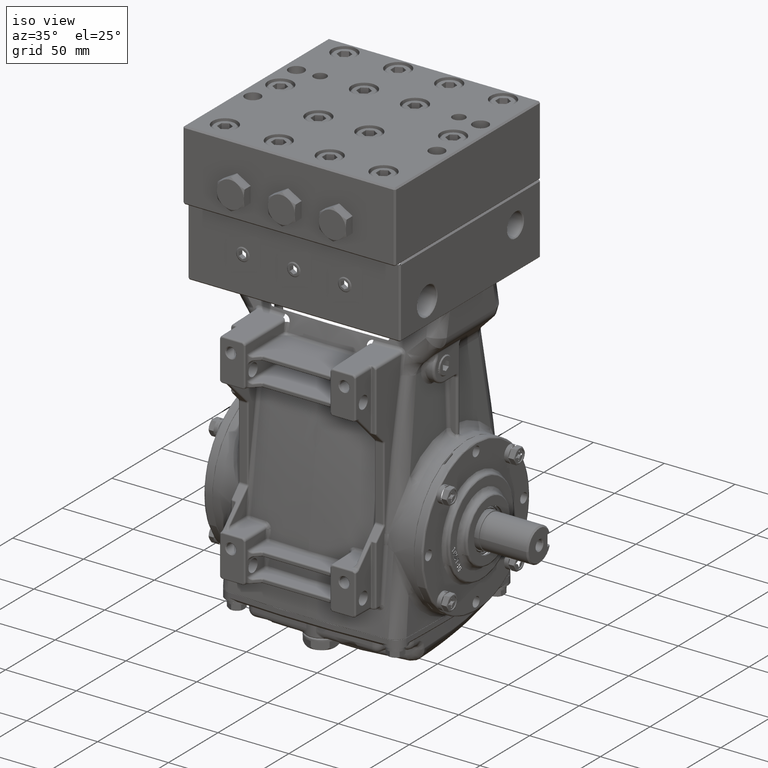
[diagram: clean part render]
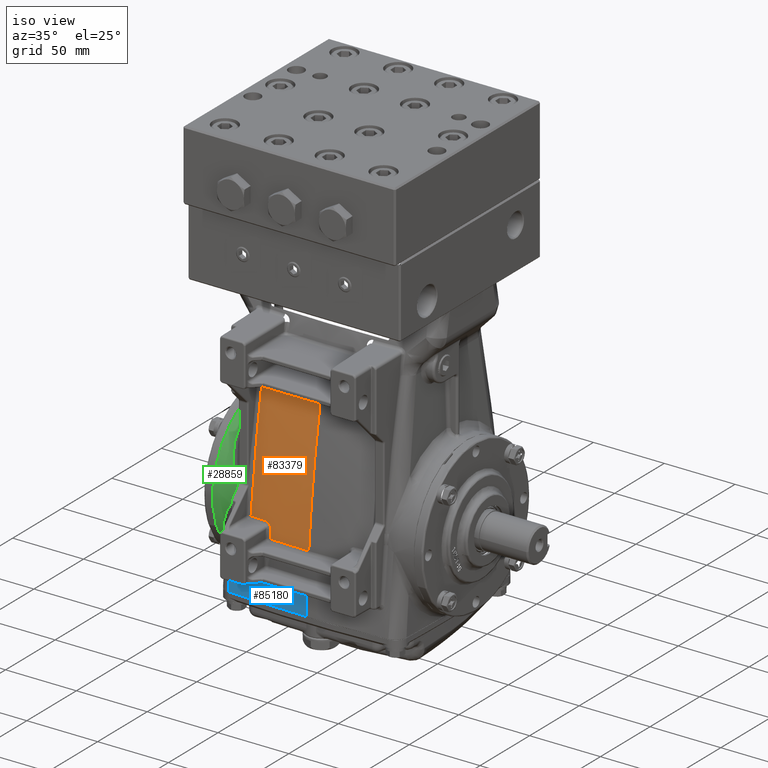
[diagram: same view with three faces highlighted in distinct colors, each labeled with its STEP entity id]
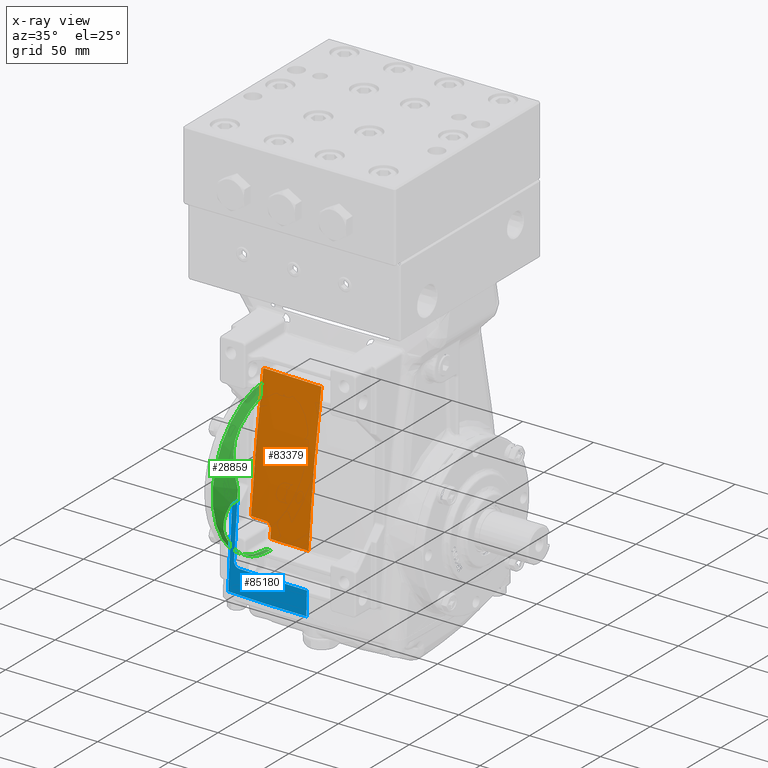
[diagram: x-ray of the same camera — body ghosted, the three highlighted faces saturated]
A machine part, iso view with three faces highlighted in distinct colors.
The next image is the same camera in x-ray (body ghosted, the three faces saturated) — at least one of them is partly hidden behind the body in this view.
Their STEP definitions:

[orange] entity #83379 — the highlighted face is a freeform B-spline surface patch.
#301 = CARTESIAN_POINT ( 'NONE',  ( -0.1019934165441795937, -2.300768595909192804, 0.4897784465330164427 ) ) ;
#431 = ORIENTED_EDGE ( 'NONE', *, *, #54745, .F. ) ;
#735 = CARTESIAN_POINT ( 'NONE',  ( 2.450684691601668241, -2.118214908375335881, 0.4897784465330197179 ) ) ;
#763 = CARTESIAN_POINT ( 'NONE',  ( -0.3616787861395119874, -2.306496812825876486, -0.5440526561699657870 ) ) ;
#1177 = CARTESIAN_POINT ( 'NONE',  ( -2.179242577519481916, -1.242815352902275405, 5.708661417322825393 ) ) ;
#1596 = CARTESIAN_POINT ( 'NONE',  ( -1.742463560137305301, -1.843263351871661904, 3.127925920230746559 ) ) ;
#1876 = CARTESIAN_POINT ( 'NONE',  ( -1.240444894278595944, -2.234850677969940413, -0.1501769756821681734 ) ) ;
#2037 = CARTESIAN_POINT ( 'NONE',  ( -2.913385843901003192, -1.691985680221069988, 3.127925920230766099 ) ) ;
#5579 = CARTESIAN_POINT ( 'NONE',  ( 1.345329668388606015, -2.372960332906651093, -2.165354330708661568 ) ) ;
#6007 = CARTESIAN_POINT ( 'NONE',  ( 0.3973269798802264163, -2.297068369690841383, 0.4897784465330322634 ) ) ;
#6473 = CARTESIAN_POINT ( 'NONE',  ( 0.3931574066697895442, -2.399831511276513840, -2.165354330708661568 ) ) ;
#6676 = EDGE_LOOP ( 'NONE', ( #431, #86555, #54275, #40300, #36726, #59564, #78010 ) ) ;
#6893 = CARTESIAN_POINT ( 'NONE',  ( 0.1450532115828236657, -2.401574803149604254, -2.165354330708661568 ) ) ;
#7261 = EDGE_CURVE ( 'NONE', #33153, #55892, #75219, .T. ) ;
#7320 = CARTESIAN_POINT ( 'NONE',  ( 2.841641326625985009, -1.202961639721772391, 5.708661417322835163 ) ) ;
#7322 = CARTESIAN_POINT ( 'NONE',  ( -3.880358019103940263E-16, -1.793953829572055847, 3.388778491068083820 ) ) ;
#7769 = CARTESIAN_POINT ( 'NONE',  ( -2.841633460699814151, -2.272069094341539142, -2.165354330708661124 ) ) ;
#8202 = CARTESIAN_POINT ( 'NONE',  ( -2.862114397419989853, -1.201536995417320064, 5.708661417322835163 ) ) ;
#8281 = CARTESIAN_POINT ( 'NONE',  ( -1.527915027197057851, -2.215913157812103851, -0.1499813333665312443 ) ) ;
#8473 = CARTESIAN_POINT ( 'NONE',  ( -1.230050119412569920, -2.235483626887897035, -0.1501834840828506212 ) ) ;
#8631 = CARTESIAN_POINT ( 'NONE',  ( -1.523571933390371225, -1.864023738764603477, 3.127925920230739010 ) ) ;
#9185 = CARTESIAN_POINT ( 'NONE',  ( -1.663672434191497240, -1.730195569268732747, 3.388363233297321475 ) ) ;
#10192 = CARTESIAN_POINT ( 'NONE',  ( -1.144808578580310376, -2.243454319908962713, -0.1825626556147575130 ) ) ;
#12320 = CARTESIAN_POINT ( 'NONE',  ( -7.157645399727127983E-16, -2.181088388933470679, 0.7727195738630786570 ) ) ;
#12583 = CARTESIAN_POINT ( 'NONE',  ( 0.4056649939589591081, -1.297898323476696980, 5.708661417322884901 ) ) ;
#13020 = CARTESIAN_POINT ( 'NONE',  ( -0.2386529819870311930, -2.400899943846322770, -2.165354330708661568 ) ) ;
#13463 = CARTESIAN_POINT ( 'NONE',  ( -0.2434275427088367916, -1.298707510032790280, 5.708661417322822729 ) ) ;
#13860 = VERTEX_POINT ( 'NONE', #47951 ) ;
#13885 = CARTESIAN_POINT ( 'NONE',  ( 2.085131295870258139, -1.806265684984527997, 3.127925920230774981 ) ) ;
#14224 = CARTESIAN_POINT ( 'NONE',  ( -1.084082905692057119, -2.260424564412967463, -0.3341032687350067865 ) ) ;
#14310 = CARTESIAN_POINT ( 'NONE',  ( 1.150346110494639085, -1.283976514928853341, 5.708661417322789866 ) ) ;
#15185 = CARTESIAN_POINT ( 'NONE',  ( -2.441314665332592337, -2.306279735125314811, -2.165354330708661124 ) ) ;
#15517 = CARTESIAN_POINT ( 'NONE',  ( -1.084188063796198698, -2.265038599171059541, -0.3869418781655847295 ) ) ;
#15600 = CARTESIAN_POINT ( 'NONE',  ( -2.083726086542785794, -2.166614530041787390, 0.4897784465330164427 ) ) ;
#16042 = CARTESIAN_POINT ( 'NONE',  ( -1.566192897389181660, -1.270407001257441548, 5.708661417322804965 ) ) ;
#16480 = CARTESIAN_POINT ( 'NONE',  ( -2.326410604817644057, -1.776570720899579792, 3.127925920230754109 ) ) ;
#16765 = CARTESIAN_POINT ( 'NONE',  ( -1.084498845193367922, -2.278379151644223111, -0.5438560755862406060 ) ) ;
#19172 = CARTESIAN_POINT ( 'NONE',  ( 2.414281635307335083, -2.308400903803342619, -2.165354330708661568 ) ) ;
#19571 = CARTESIAN_POINT ( 'NONE',  ( 1.741295670112182004, -1.263397575016607766, 5.708661417322819176 ) ) ;
#19984 = CARTESIAN_POINT ( 'NONE',  ( 1.989399371181372889, -2.338284998638616496, -2.165354330708661568 ) ) ;
#20433 = CARTESIAN_POINT ( 'NONE',  ( -0.8095103919857099539, -1.292140362101247275, 5.708661417322844045 ) ) ;
#20856 = CARTESIAN_POINT ( 'NONE',  ( 2.832087334218518215, -1.704813401921120075, 3.127925920230760770 ) ) ;
#20937 = CARTESIAN_POINT ( 'NONE',  ( -1.240444894278595944, -2.234850677969940413, -0.1501769756821681734 ) ) ;
#21268 = CARTESIAN_POINT ( 'NONE',  ( -2.511391663655031969, -1.752002329188381724, 3.127925920230767431 ) ) ;
#21722 = CARTESIAN_POINT ( 'NONE',  ( -1.695585503688048057, -2.210467917730779330, 0.4897784465330109471 ) ) ;
#22079 = CARTESIAN_POINT ( 'NONE',  ( -1.084135534368267484, -2.262743776373799420, -0.3605215198298847845 ) ) ;
#22361 = CARTESIAN_POINT ( 'NONE',  ( 2.913386025391116796, -2.048762232609160350, 0.4897784465330197179 ) ) ;
#22582 = CARTESIAN_POINT ( 'NONE',  ( -0.5550348168314169772, -1.788257067635133257, 3.388743369700574881 ) ) ;
#23029 = CARTESIAN_POINT ( 'NONE',  ( -2.729947521028413426, -1.210496205736398601, 5.708661417322848486 ) ) ;
#25716 = CARTESIAN_POINT ( 'NONE',  ( 1.648668314213679542, -2.215500870424770952, 0.4897784465330115022 ) ) ;
#25874 = CARTESIAN_POINT ( 'NONE',  ( 4.458260523316134090E-16, -1.908191123398606193, 2.737698722522007078 ) ) ;
#26150 = CARTESIAN_POINT ( 'NONE',  ( 1.943646624093664954, -1.254362676313991454, 5.708661417322839604 ) ) ;
#26477 = CARTESIAN_POINT ( 'NONE',  ( -1.084498845193367922, -2.278379151644223111, -0.5438560755862406060 ) ) ;
#26555 = CARTESIAN_POINT ( 'NONE',  ( 0.8019535934125021637, -1.292120820694519612, 5.708661417322794307 ) ) ;
#26866 = CARTESIAN_POINT ( 'NONE',  ( -1.664976883656835716, -1.831649929826981715, 2.801814109386677742 ) ) ;
#26982 = CARTESIAN_POINT ( 'NONE',  ( -0.4731394191495167378, -2.398237061164401940, -2.165354330708661568 ) ) ;
#27424 = CARTESIAN_POINT ( 'NONE',  ( 1.694981807724703637, -1.848142482010726173, 3.127925920230747892 ) ) ;
#27836 = CARTESIAN_POINT ( 'NONE',  ( -2.240980235268056564, -2.321187910974374269, -2.165354330708661124 ) ) ;
#28251 = CARTESIAN_POINT ( 'NONE',  ( -2.369125755900590491, -1.232386614232148236, 5.708661417322822729 ) ) ;
#28701 = CARTESIAN_POINT ( 'NONE',  ( -2.913385826771652809, -1.197969208711458178, 5.708661417322836940 ) ) ;
#28921 = CARTESIAN_POINT ( 'NONE',  ( 2.913385809642300650, -1.691985680221144150, 3.127925920230762102 ) ) ;
#28985 = CARTESIAN_POINT ( 'NONE',  ( -1.104538450792835302, -2.249909094682416288, -0.2288645540813238899 ) ) ;
#29547 = CARTESIAN_POINT ( 'NONE',  ( -1.648708095812247754, -2.358238290425402450, -2.165354330708661124 ) ) ;
#32227 = CARTESIAN_POINT ( 'NONE',  ( 2.132997294791505460, -1.245100427256945474, 5.708661417322859144 ) ) ;
#32567 = CARTESIAN_POINT ( 'NONE',  ( -1.084395628949245571, -2.274027808519377469, -0.4915433102944287147 ) ) ;
#32657 = CARTESIAN_POINT ( 'NONE',  ( -0.4944103712627438973, -1.296520347643934645, 5.708661417322814735 ) ) ;
#32918 = B_SPLINE_CURVE_WITH_KNOTS ( 'NONE', 3,
 ( #35956, #70046, #83643, #48237, #82774, #55666, #28985, #42518, #49533, #75345, #10192, #82346, #69618, #76213, #62229, #61793, #8473, #1876 ),
 .UNSPECIFIED., .F., .F.,
 ( 4, 2, 2, 2, 2, 2, 2, 2, 4 ),
 ( 0.000000000000000000, 0.0007886128827416663892, 0.001577225765483332778, 0.002365838648224999168, 0.003154451530966665557, 0.003943064413708331946, 0.004731677296449998335, 0.005520290179191664724, 0.006308903061933331113 ),
 .UNSPECIFIED. ) ;
#33098 = CARTESIAN_POINT ( 'NONE',  ( -0.4802293617885408650, -2.293642939336622888, 0.4897784465330087822 ) ) ;
#33153 = VERTEX_POINT ( 'NONE', #85221 ) ;
#33508 = CARTESIAN_POINT ( 'NONE',  ( 0.1450234440065840680, -2.300768595909192804, 0.4897784465330164427 ) ) ;
#33935 = CARTESIAN_POINT ( 'NONE',  ( 2.037265628463426737, -2.172062645620671084, 0.4897784465330257131 ) ) ;
#34799 = CARTESIAN_POINT ( 'NONE',  ( -1.192739666030864010, -1.282981708238520646, 5.708661417322852927 ) ) ;
#35220 = CARTESIAN_POINT ( 'NONE',  ( -1.789341252083286316, -1.261249471572276626, 5.708661417322813847 ) ) ;
#35956 = CARTESIAN_POINT ( 'NONE',  ( -1.084030175641961691, -2.258080956032562980, -0.3076871936120910700 ) ) ;
#36110 = CARTESIAN_POINT ( 'NONE',  ( -2.664582750533178945, -2.288033759751159746, -2.165354330708661124 ) ) ;
#36726 = ORIENTED_EDGE ( 'NONE', *, *, #84918, .F. ) ;
#36927 = B_SPLINE_SURFACE_WITH_KNOTS ( 'NONE', 3, 3, ( 
 ( #50314, #22361, #28921, #82279 ),
 ( #49016, #52362, #20856, #7320 ),
 ( #47520, #85628, #72888, #53209 ),
 ( #19172, #735, #40076, #60656 ),
 ( #74178, #45795, #66752, #60229 ),
 ( #19984, #33935, #13885, #32227 ),
 ( #86070, #58933, #52800, #26150 ),
 ( #40934, #25716, #27424, #19571 ),
 ( #5579, #73767, #46657, #73341 ),
 ( #54086, #79468, #80753, #14310 ),
 ( #39647, #66336, #53637, #26555 ),
 ( #6473, #6007, #67169, #12583 ),
 ( #6893, #33508, #40495, #79045 ),
 ( #72470, #301, #59381, #46213 ),
 ( #13020, #39211, #65909, #13463 ),
 ( #26982, #33098, #59810, #32657 ),
 ( #86478, #79884, #80328, #20433 ),
 ( #47094, #68473, #56252, #34799 ),
 ( #61511, #67613, #8631, #16042 ),
 ( #29547, #21722, #1596, #35220 ),
 ( #68060, #54942, #75496, #42225 ),
 ( #81625, #15600, #48404, #1177 ),
 ( #27836, #82939, #16480, #28251 ),
 ( #15185, #75078, #21268, #74634 ),
 ( #36110, #62827, #41374, #23029 ),
 ( #7769, #49238, #41803, #8202 ),
 ( #61945, #48819, #2037, #28701 ) ),
 .UNSPECIFIED., .F., .F., .F.,
 ( 4, 1, 1, 1, 1, 1, 1, 1, 1, 1, 1, 2, 1, 1, 1, 1, 1, 1, 1, 1, 1, 1, 1, 4 ),
 ( 4, 4 ),
 ( 0.1820721574386664487, 0.1959246563835279065, 0.2035427212275890407, 0.2193976784518300027, 0.2310405802590582147, 0.2359332488469739197, 0.2508238822397266254, 0.2638475608825300855, 0.2796596398469345934, 0.2995163485322877017, 0.3173264764016465178, 0.3410360787193327248, 0.3577107850873240125, 0.3637457220820375925, 0.3805901526646463529, 0.4065920388027236543, 0.4224714650153005291, 0.4387315542144890612, 0.4421836685404009204, 0.4588536976265763512, 0.4664841599499357505, 0.4748837514135769711, 0.4901004416486962612, 0.5000000000000002220 ),
 ( 0.000000000000000000, 1.000000000000000000 ),
 .UNSPECIFIED. ) ;
#37044 = B_SPLINE_CURVE_WITH_KNOTS ( 'NONE', 3,
 ( #53226, #763, #80772, #66772 ),
 .UNSPECIFIED., .F., .F.,
 ( 4, 4 ),
 ( 1.914418252958704509E-17, 0.02755972158727674690 ),
 .UNSPECIFIED. ) ;
#38527 = CARTESIAN_POINT ( 'NONE',  ( 4.358330601197656172E-16, -1.853113028278692065, 3.063643956405773583 ) ) ;
#38803 = FACE_OUTER_BOUND ( 'NONE', #6676, .T. ) ;
#39211 = CARTESIAN_POINT ( 'NONE',  ( -0.2402441229366550357, -2.299342540392105505, 0.4897784465330115022 ) ) ;
#39347 = B_SPLINE_CURVE_WITH_KNOTS ( 'NONE', 3,
 ( #81182, #82492, #61094, #22582, #75922, #7322 ),
 .UNSPECIFIED., .F., .F.,
 ( 4, 2, 4 ),
 ( 6.938893903907228378E-18, 0.02115083174250376868, 0.04230166348500753043 ),
 .UNSPECIFIED. ) ;
#39647 = CARTESIAN_POINT ( 'NONE',  ( 0.7520193225572906481, -2.393118508680737833, -2.165354330708661568 ) ) ;
#40076 = CARTESIAN_POINT ( 'NONE',  ( 2.487087237515684279, -1.755350102494639408, 3.127925920230762102 ) ) ;
#40300 = ORIENTED_EDGE ( 'NONE', *, *, #76607, .F. ) ;
#40495 = CARTESIAN_POINT ( 'NONE',  ( 0.1449928827331219139, -1.931427949591510096, 3.127925920230758550 ) ) ;
#40934 = CARTESIAN_POINT ( 'NONE',  ( 1.602354164347848275, -2.360792373919398557, -2.165354330708661568 ) ) ;
#41374 = CARTESIAN_POINT ( 'NONE',  ( -2.708159283295321185, -1.723791484228669901, 3.127925920230772761 ) ) ;
#41466 = CARTESIAN_POINT ( 'NONE',  ( -1.384225660618530585, -2.226095713898979866, -0.1500869513334240346 ) ) ;
#41803 = CARTESIAN_POINT ( 'NONE',  ( -2.855287436206087825, -1.701152819370445712, 3.127925920230766099 ) ) ;
#42225 = CARTESIAN_POINT ( 'NONE',  ( -2.012704400865600096, -1.251118121441595177, 5.708661417322824505 ) ) ;
#42518 = CARTESIAN_POINT ( 'NONE',  ( -1.115924110286393489, -2.247725094233928189, -0.2116756261339111378 ) ) ;
#45478 = VERTEX_POINT ( 'NONE', #16765 ) ;
#45795 = CARTESIAN_POINT ( 'NONE',  ( 2.234415192802542194, -2.147607685230842556, 0.4897784465330246584 ) ) ;
#46213 = CARTESIAN_POINT ( 'NONE',  ( -0.1019499836553658945, -1.299212598425201870, 5.708661417322835163 ) ) ;
#46657 = CARTESIAN_POINT ( 'NONE',  ( 1.424768798695139616, -1.872199753906887310, 3.127925920230765211 ) ) ;
#46981 = CARTESIAN_POINT ( 'NONE',  ( -1.670161274976123655, -2.147400697531644642, 0.4426558265975095718 ) ) ;
#47094 = CARTESIAN_POINT ( 'NONE',  ( -1.099363582922382898, -2.382977130700381085, -2.165354330708661124 ) ) ;
#47520 = CARTESIAN_POINT ( 'NONE',  ( 2.663295530942337397, -2.288034568519342837, -2.165354330708661568 ) ) ;
#47600 = CARTESIAN_POINT ( 'NONE',  ( -1.671499988180573437, -2.204385450591111351, -0.1498612659050825024 ) ) ;
#47951 = CARTESIAN_POINT ( 'NONE',  ( -3.880358019103940263E-16, -1.793953829572055847, 3.388778491068083820 ) ) ;
#48237 = CARTESIAN_POINT ( 'NONE',  ( -1.088983977023510352, -2.254165694445373180, -0.2667714252498789573 ) ) ;
#48404 = CARTESIAN_POINT ( 'NONE',  ( -2.131484495458455086, -1.801026039677051660, 3.127925920230756329 ) ) ;
#48819 = CARTESIAN_POINT ( 'NONE',  ( -2.913385628152181717, -2.048762232609148803, 0.4897784465330224379 ) ) ;
#49016 = CARTESIAN_POINT ( 'NONE',  ( 2.812979403157047642, -2.274754709963543675, -2.165354330708661568 ) ) ;
#49238 = CARTESIAN_POINT ( 'NONE',  ( -2.848460234453432882, -2.059014184365170586, 0.4897784465330218828 ) ) ;
#49533 = CARTESIAN_POINT ( 'NONE',  ( -1.122377073161225924, -2.246647239450680900, -0.2037528214286146999 ) ) ;
#50314 = CARTESIAN_POINT ( 'NONE',  ( 2.913385826771640374, -2.265344068576862213, -2.165354330708661568 ) ) ;
#52362 = CARTESIAN_POINT ( 'NONE',  ( 2.822533585408711243, -2.063108027997043958, 0.4897784465330197179 ) ) ;
#52528 = CARTESIAN_POINT ( 'NONE',  ( -4.438784194610900819E-16, -2.306496805849697296, -0.5440526558611742391 ) ) ;
#52800 = CARTESIAN_POINT ( 'NONE',  ( 1.895214259565355164, -1.827571154474286530, 3.127925920230762102 ) ) ;
#53097 = CARTESIAN_POINT ( 'NONE',  ( -1.663672434191497240, -1.730195569268732747, 3.388363233297321475 ) ) ;
#53209 = CARTESIAN_POINT ( 'NONE',  ( 2.727940840439589287, -1.210589729325568742, 5.708661417322833387 ) ) ;
#53226 = CARTESIAN_POINT ( 'NONE',  ( -4.438784194610900819E-16, -2.306496805849697296, -0.5440526558611742391 ) ) ;
#53637 = CARTESIAN_POINT ( 'NONE',  ( 0.7853088048963520196, -1.913828282296069494, 3.127925920230730128 ) ) ;
#53999 = CARTESIAN_POINT ( 'NONE',  ( -1.084030175641961691, -2.258080956032562980, -0.3076871936120910700 ) ) ;
#54086 = CARTESIAN_POINT ( 'NONE',  ( 1.062078202322136677, -2.384053432892072166, -2.165354330708661568 ) ) ;
#54275 = ORIENTED_EDGE ( 'NONE', *, *, #55934, .F. ) ;
#54696 = B_SPLINE_CURVE_WITH_KNOTS ( 'NONE', 3,
 ( #71325, #38527, #25874, #65226, #84500, #84054, #12320, #78761, #63934, #52528 ),
 .UNSPECIFIED., .F., .F.,
 ( 4, 2, 2, 2, 4 ),
 ( 0.06024417320094749978, 0.08542293328770995953, 0.1106016933744723985, 0.1357804534612348513, 0.1609592135479973041 ),
 .UNSPECIFIED. ) ;
#54745 = EDGE_CURVE ( 'NONE', #55892, #65847, #78955, .T. ) ;
#54942 = CARTESIAN_POINT ( 'NONE',  ( -1.915486056463429509, -2.186527716124487153, 0.4897784465330153325 ) ) ;
#54998 = B_SPLINE_CURVE_WITH_KNOTS ( 'NONE', 3,
 ( #26477, #32567, #74995, #15517, #22079, #14224, #53999 ),
 .UNSPECIFIED., .F., .F.,
 ( 4, 3, 4 ),
 ( 1.734723475976807094E-18, 0.004000006667516224981, 0.006020819402372753343 ),
 .UNSPECIFIED. ) ;
#55666 = CARTESIAN_POINT ( 'NONE',  ( -1.099710183924679230, -2.250997816146371289, -0.2380024238543103632 ) ) ;
#55892 = VERTEX_POINT ( 'NONE', #74471 ) ;
#55934 = EDGE_CURVE ( 'NONE', #70306, #33153, #32918, .T. ) ;
#56252 = CARTESIAN_POINT ( 'NONE',  ( -1.161614335099258266, -1.892574789840514082, 3.127925920230770540 ) ) ;
#57514 = EDGE_CURVE ( 'NONE', #13860, #83988, #54696, .T. ) ;
#58933 = CARTESIAN_POINT ( 'NONE',  ( 1.846782245487664120, -2.194251839819475247, 0.4897784465330191628 ) ) ;
#59257 = CARTESIAN_POINT ( 'NONE',  ( -1.666263864281610996, -1.921684427565187647, 2.213638218249974088 ) ) ;
#59381 = CARTESIAN_POINT ( 'NONE',  ( -0.1019719231317475217, -1.931427949591510096, 3.127925920230758550 ) ) ;
#59564 = ORIENTED_EDGE ( 'NONE', *, *, #57514, .F. ) ;
#59810 = CARTESIAN_POINT ( 'NONE',  ( -0.4873200862093268193, -1.924545779200158346, 3.127925920230743451 ) ) ;
#60229 = CARTESIAN_POINT ( 'NONE',  ( 2.324091733874597221, -1.235065584125857319, 5.708661417322855591 ) ) ;
#60656 = CARTESIAN_POINT ( 'NONE',  ( 2.523490070267367269, -1.223445930611730459, 5.708661417322837828 ) ) ;
#61094 = CARTESIAN_POINT ( 'NONE',  ( -1.109740814995540781, -1.766747696196211859, 3.388606815657019933 ) ) ;
#61121 = CARTESIAN_POINT ( 'NONE',  ( -1.084030175641961691, -2.258080956032562980, -0.3076871936120910700 ) ) ;
#61511 = CARTESIAN_POINT ( 'NONE',  ( -1.438329920831149300, -2.368889522099581146, -2.165354330708661124 ) ) ;
#61793 = CARTESIAN_POINT ( 'NONE',  ( -1.219837589830072178, -2.236194069783405070, -0.1512179920518048892 ) ) ;
#61945 = CARTESIAN_POINT ( 'NONE',  ( -2.913385826771654141, -2.265344068576858216, -2.165354330708661124 ) ) ;
#62229 = CARTESIAN_POINT ( 'NONE',  ( -1.199760974019113746, -2.237762477949927220, -0.1552527717035294685 ) ) ;
#62827 = CARTESIAN_POINT ( 'NONE',  ( -2.686370785910845438, -2.084068835673706488, 0.4897784465330251580 ) ) ;
#63934 = CARTESIAN_POINT ( 'NONE',  ( 4.617795764761673671E-16, -2.280336022690061970, -0.2144450474789921235 ) ) ;
#65226 = CARTESIAN_POINT ( 'NONE',  ( 4.429618779532718446E-16, -2.010167427803502438, 2.084183344497465118 ) ) ;
#65847 = VERTEX_POINT ( 'NONE', #9185 ) ;
#65909 = CARTESIAN_POINT ( 'NONE',  ( -0.2418360551790647017, -1.930064199602339103, 3.127925920230748780 ) ) ;
#66336 = CARTESIAN_POINT ( 'NONE',  ( 0.7686644455069936432, -2.282642455870154130, 0.4897784465330022319 ) ) ;
#66752 = CARTESIAN_POINT ( 'NONE',  ( 2.279253307875170886, -1.782954428840536565, 3.127925920230772761 ) ) ;
#66772 = CARTESIAN_POINT ( 'NONE',  ( -1.084498845193367922, -2.278379151644223111, -0.5438560755862406060 ) ) ;
#67169 = CARTESIAN_POINT ( 'NONE',  ( 0.4014957656440683587, -1.927885586440233778, 3.127925920230790080 ) ) ;
#67613 = CARTESIAN_POINT ( 'NONE',  ( -1.480950586178898964, -2.231805334558659037, 0.4897784465330071724 ) ) ;
#68060 = CARTESIAN_POINT ( 'NONE',  ( -1.866877324122247384, -2.345940473350990541, -2.165354330708661124 ) ) ;
#68473 = CARTESIAN_POINT ( 'NONE',  ( -1.130488594888034770, -2.260970933480431988, 0.4897784465330229930 ) ) ;
#69618 = CARTESIAN_POINT ( 'NONE',  ( -1.170809080665529578, -2.240468819262972477, -0.1662471103388179217 ) ) ;
#70046 = CARTESIAN_POINT ( 'NONE',  ( -1.084009473194327500, -2.257160827383280388, -0.2973159269254638248 ) ) ;
#70306 = VERTEX_POINT ( 'NONE', #61121 ) ;
#71086 = EDGE_CURVE ( 'NONE', #65847, #13860, #39347, .T. ) ;
#71325 = CARTESIAN_POINT ( 'NONE',  ( -3.880358019103940263E-16, -1.793953829572055847, 3.388778491068083820 ) ) ;
#72470 = CARTESIAN_POINT ( 'NONE',  ( -0.1020157036538342499, -2.401574803149599369, -2.165354330708661568 ) ) ;
#72772 = CARTESIAN_POINT ( 'NONE',  ( -1.671499988180573437, -2.204385450591111351, -0.1498612659050825024 ) ) ;
#72888 = CARTESIAN_POINT ( 'NONE',  ( 2.706392384829026998, -1.723957603235172220, 3.127925920230758550 ) ) ;
#73341 = CARTESIAN_POINT ( 'NONE',  ( 1.464488406949914445, -1.274012937168635062, 5.708661417322844045 ) ) ;
#73572 = CARTESIAN_POINT ( 'NONE',  ( -4.438784194610900819E-16, -2.306496805849697296, -0.5440526558611742391 ) ) ;
#73767 = CARTESIAN_POINT ( 'NONE',  ( 1.385049581091524207, -2.240167768303173546, 0.4897784465330202730 ) ) ;
#74178 = CARTESIAN_POINT ( 'NONE',  ( 2.189576524486962494, -2.325080261920545954, -2.165354330708661568 ) ) ;
#74471 = CARTESIAN_POINT ( 'NONE',  ( -1.671499988180573437, -2.204385450591111351, -0.1498612659050825024 ) ) ;
#74634 = CARTESIAN_POINT ( 'NONE',  ( -2.546430131488119031, -1.222062046991427398, 5.708661417322842269 ) ) ;
#74995 = CARTESIAN_POINT ( 'NONE',  ( -1.084292040675105540, -2.269580977062863880, -0.4392384004682781118 ) ) ;
#75078 = CARTESIAN_POINT ( 'NONE',  ( -2.476352911878942020, -2.114609130722289176, 0.4897784465330224379 ) ) ;
#75219 = B_SPLINE_CURVE_WITH_KNOTS ( 'NONE', 3,
 ( #20937, #41466, #8281, #47600 ),
 .UNSPECIFIED., .F., .F.,
 ( 4, 4 ),
 ( 6.938893903907228378E-18, 0.01097631794368908453 ),
 .UNSPECIFIED. ) ;
#75345 = CARTESIAN_POINT ( 'NONE',  ( -1.136770881183574611, -2.244517018020598886, -0.1892222247075050490 ) ) ;
#75496 = CARTESIAN_POINT ( 'NONE',  ( -1.964095400574094485, -1.820132787096655713, 3.127925920230754109 ) ) ;
#75922 = CARTESIAN_POINT ( 'NONE',  ( -0.2775766395478562742, -1.793953827746439966, 3.388778490940969945 ) ) ;
#76213 = CARTESIAN_POINT ( 'NONE',  ( -1.189792242981691395, -2.238631070579994109, -0.1583026045091741885 ) ) ;
#76607 = EDGE_CURVE ( 'NONE', #45478, #70306, #54998, .T. ) ;
#78010 = ORIENTED_EDGE ( 'NONE', *, *, #71086, .F. ) ;
#78761 = CARTESIAN_POINT ( 'NONE',  ( -7.186473001584006522E-16, -2.250010485369872804, 0.1149634935245342771 ) ) ;
#78955 = B_SPLINE_CURVE_WITH_KNOTS ( 'NONE', 3,
 ( #72772, #46981, #86364, #59257, #26866, #53097 ),
 .UNSPECIFIED., .F., .F.,
 ( 4, 2, 4 ),
 ( 0.000000000000000000, 0.04535818248946323766, 0.09071636497892647533 ),
 .UNSPECIFIED. ) ;
#79045 = CARTESIAN_POINT ( 'NONE',  ( 0.1449627675236093149, -1.299212598425193654, 5.708661417322835163 ) ) ;
#79468 = CARTESIAN_POINT ( 'NONE',  ( 1.091501189288766271, -2.263308735351801104, 0.4897784465330011217 ) ) ;
#79884 = CARTESIAN_POINT ( 'NONE',  ( -0.7760523888099777334, -2.282663781206307085, 0.4897784465330197179 ) ) ;
#80328 = CARTESIAN_POINT ( 'NONE',  ( -0.7927816049644672569, -1.913850617605292292, 3.127925920230765211 ) ) ;
#80753 = CARTESIAN_POINT ( 'NONE',  ( 1.120923444174017236, -1.894876309026141348, 3.127925920230727019 ) ) ;
#80772 = CARTESIAN_POINT ( 'NONE',  ( -0.7232950173701823138, -2.296882259659634329, -0.5439939882487848655 ) ) ;
#81182 = CARTESIAN_POINT ( 'NONE',  ( -1.663672434191497240, -1.730195569268732747, 3.388363233297321475 ) ) ;
#81625 = CARTESIAN_POINT ( 'NONE',  ( -2.035968259211040188, -2.335433637454240152, -2.165354330708661124 ) ) ;
#82279 = CARTESIAN_POINT ( 'NONE',  ( 2.913385826771655474, -1.197969208711458178, 5.708661417322835163 ) ) ;
#82346 = CARTESIAN_POINT ( 'NONE',  ( -1.161814723588219911, -2.241433458655237132, -0.1711033893030866615 ) ) ;
#82492 = CARTESIAN_POINT ( 'NONE',  ( -1.386876609546873196, -1.750932431424213176, 3.388505796847545604 ) ) ;
#82774 = CARTESIAN_POINT ( 'NONE',  ( -1.091960265938938246, -2.253119158052579785, -0.2568951499013944484 ) ) ;
#82939 = CARTESIAN_POINT ( 'NONE',  ( -2.283695148368135364, -2.140796000541713706, 0.4897784465330153325 ) ) ;
#83379 = ADVANCED_FACE ( 'NONE', ( #38803 ), #36927, .F. ) ;
#83643 = CARTESIAN_POINT ( 'NONE',  ( -1.084999455407734015, -2.256193883383995846, -0.2870588723600730474 ) ) ;
#83988 = VERTEX_POINT ( 'NONE', #73572 ) ;
#84054 = CARTESIAN_POINT ( 'NONE',  ( -1.758570860625543910E-16, -2.142492827023651625, 1.101084419947147230 ) ) ;
#84500 = CARTESIAN_POINT ( 'NONE',  ( -1.729833203888251239E-16, -2.057036775566738918, 1.756788232823439211 ) ) ;
#84918 = EDGE_CURVE ( 'NONE', #83988, #45478, #37044, .T. ) ;
#85221 = CARTESIAN_POINT ( 'NONE',  ( -1.240444894278595944, -2.234850677969940413, -0.1501769756821681734 ) ) ;
#85628 = CARTESIAN_POINT ( 'NONE',  ( 2.684844189044222507, -2.084204787240041767, 0.4897784465330180526 ) ) ;
#86070 = CARTESIAN_POINT ( 'NONE',  ( 1.798349607840901365, -2.349958156103969742, -2.165354330708661568 ) ) ;
#86364 = CARTESIAN_POINT ( 'NONE',  ( -1.668855918374695824, -2.079555208578093062, 1.034124399978609610 ) ) ;
#86478 = CARTESIAN_POINT ( 'NONE',  ( -0.7593239362273180859, -2.393134938270132572, -2.165354330708661568 ) ) ;
#86555 = ORIENTED_EDGE ( 'NONE', *, *, #7261, .F. ) ;

[blue] entity #85180 — the highlighted face is a freeform B-spline surface patch.
#982 = CARTESIAN_POINT ( 'NONE',  ( 2.234415192802542194, -2.147607685230842556, 0.4897784465330246584 ) ) ;
#1408 = CARTESIAN_POINT ( 'NONE',  ( 1.846782245487664120, -2.194251839819475247, 0.4897784465330191628 ) ) ;
#1831 = CARTESIAN_POINT ( 'NONE',  ( 2.450684691601668241, -2.118214908375335881, 0.4897784465330197179 ) ) ;
#2278 = CARTESIAN_POINT ( 'NONE',  ( 0.4014957656440683587, -1.927885586440233778, 3.127925920230790080 ) ) ;
#2698 = CARTESIAN_POINT ( 'NONE',  ( 0.7520193225572906481, -2.393118508680737833, -2.165354330708661568 ) ) ;
#3124 = CARTESIAN_POINT ( 'NONE',  ( -1.648708095812247754, -2.358238290425402450, -2.165354330708661124 ) ) ;
#3564 = CARTESIAN_POINT ( 'NONE',  ( -2.546430131488119031, -1.222062046991427398, 5.708661417322842269 ) ) ;
#3862 = CARTESIAN_POINT ( 'NONE',  ( -1.947238811188662932, -2.297504389175058392, -1.515274071881912876 ) ) ;
#4816 = CARTESIAN_POINT ( 'NONE',  ( -2.152297768150971624, -2.142689628655618517, 0.02856446299710135514 ) ) ;
#5163 = CARTESIAN_POINT ( 'NONE',  ( -1.977532839391788144, -2.294868309427970932, -1.510350629139490364 ) ) ;
#5261 = CARTESIAN_POINT ( 'NONE',  ( -2.140056970436321482, -2.142767876396955540, 0.03981018133412585203 ) ) ;
#5388 = FACE_OUTER_BOUND ( 'NONE', #59603, .T. ) ;
#5576 = CARTESIAN_POINT ( 'NONE',  ( -2.078119184197076752, -2.280856656382813430, -1.428301951442352946 ) ) ;
#6263 = CARTESIAN_POINT ( 'NONE',  ( 2.812979403157047642, -2.274754709963543675, -2.165354330708661568 ) ) ;
#6760 = CARTESIAN_POINT ( 'NONE',  ( -1.856642334662409022, -2.347834933896387533, -2.152851620296431623 ) ) ;
#6902 = B_SPLINE_CURVE_WITH_KNOTS ( 'NONE', 3,
 ( #82317, #56064, #82750, #36783 ),
 .UNSPECIFIED., .F., .F.,
 ( 4, 4 ),
 ( 3.469446951953614189E-18, 0.03692176121666777833 ),
 .UNSPECIFIED. ) ;
#7560 = CARTESIAN_POINT ( 'NONE',  ( 1.694981807724703637, -1.848142482010726173, 3.127925920230747892 ) ) ;
#7792 = CARTESIAN_POINT ( 'NONE',  ( -0.6463518445288752856, -2.365118205038615695, -1.512824966342292798 ) ) ;
#8011 = CARTESIAN_POINT ( 'NONE',  ( -0.2386529819870311930, -2.400899943846322770, -2.165354330708661568 ) ) ;
#8432 = CARTESIAN_POINT ( 'NONE',  ( 2.523490070267367269, -1.223445930611730459, 5.708661417322837828 ) ) ;
#8860 = CARTESIAN_POINT ( 'NONE',  ( 1.062078202322136677, -2.384053432892072166, -2.165354330708661568 ) ) ;
#9310 = CARTESIAN_POINT ( 'NONE',  ( 1.345329668388606015, -2.372960332906651093, -2.165354330708661568 ) ) ;
#9387 = CARTESIAN_POINT ( 'NONE',  ( -2.116561529445013523, -2.142681922804821948, 0.06350313705712178070 ) ) ;
#9733 = CARTESIAN_POINT ( 'NONE',  ( -1.866877324122247384, -2.345940473350990541, -2.165354330708661124 ) ) ;
#10172 = ORIENTED_EDGE ( 'NONE', *, *, #66657, .F. ) ;
#10436 = CARTESIAN_POINT ( 'NONE',  ( -2.055221412835197103, -2.285279380732452292, -1.462400027642793088 ) ) ;
#11003 = CARTESIAN_POINT ( 'NONE',  ( -2.729947521028413426, -1.210496205736398601, 5.708661417322848486 ) ) ;
#11297 = CARTESIAN_POINT ( 'NONE',  ( -2.015559757381419015, -2.290807198609285944, -1.494750231016349851 ) ) ;
#11429 = CARTESIAN_POINT ( 'NONE',  ( -2.283695148368135364, -2.140796000541713706, 0.4897784465330153325 ) ) ;
#11983 = CARTESIAN_POINT ( 'NONE',  ( 3.641317484299570039E-16, -2.401107312964274154, -2.153091527327713806 ) ) ;
#12818 = CARTESIAN_POINT ( 'NONE',  ( 2.913385826771655474, -1.197969208711458178, 5.708661417322835163 ) ) ;
#12946 = ORIENTED_EDGE ( 'NONE', *, *, #44067, .F. ) ;
#13482 = CARTESIAN_POINT ( 'NONE',  ( -1.291967322808942775, -2.340485361341167359, -1.513743963978316343 ) ) ;
#13615 = EDGE_CURVE ( 'NONE', #28492, #65881, #23077, .T. ) ;
#14113 = CARTESIAN_POINT ( 'NONE',  ( 0.3973269798802264163, -2.297068369690841383, 0.4897784465330322634 ) ) ;
#14554 = CARTESIAN_POINT ( 'NONE',  ( -0.8095103919857099539, -1.292140362101247275, 5.708661417322844045 ) ) ;
#14562 = B_SPLINE_SURFACE_WITH_KNOTS ( 'NONE', 3, 3, ( 
 ( #53019, #19380, #73136, #12818 ),
 ( #6263, #32892, #59625, #86293 ),
 ( #26367, #79688, #39878, #46452 ),
 ( #60894, #1831, #80988, #8432 ),
 ( #15836, #982, #28063, #68711 ),
 ( #56046, #67403, #61322, #82730 ),
 ( #42470, #1408, #55627, #47325 ),
 ( #28499, #55195, #7560, #69165 ),
 ( #9310, #35916, #42035, #81416 ),
 ( #8860, #68282, #73995, #62633 ),
 ( #2698, #34610, #28946, #62189 ),
 ( #82302, #14113, #2278, #40734 ),
 ( #22385, #27655, #48197, #49042 ),
 ( #75732, #81877, #21968, #34176 ),
 ( #8011, #29354, #54312, #35469 ),
 ( #21510, #21081, #35028, #47752 ),
 ( #54744, #74423, #74876, #14554 ),
 ( #41177, #14996, #75301, #67851 ),
 ( #41610, #61750, #48633, #15410 ),
 ( #3124, #31072, #63475, #49489 ),
 ( #9733, #36343, #29785, #17134 ),
 ( #43331, #22832, #51212, #70431 ),
 ( #23680, #11429, #76592, #49928 ),
 ( #76172, #50339, #57777, #3564 ),
 ( #30228, #70004, #24111, #11003 ),
 ( #44214, #50761, #84471, #71292 ),
 ( #16706, #63047, #38052, #37631 ) ),
 .UNSPECIFIED., .F., .F., .F.,
 ( 4, 1, 1, 1, 1, 1, 1, 1, 1, 1, 1, 2, 1, 1, 1, 1, 1, 1, 1, 1, 1, 1, 1, 4 ),
 ( 4, 4 ),
 ( 0.1820721574386664487, 0.1959246563835279065, 0.2035427212275890407, 0.2193976784518300027, 0.2310405802590582147, 0.2359332488469739197, 0.2508238822397266254, 0.2638475608825300855, 0.2796596398469345934, 0.2995163485322877017, 0.3173264764016465178, 0.3410360787193327248, 0.3577107850873240125, 0.3637457220820375925, 0.3805901526646463529, 0.4065920388027236543, 0.4224714650153005291, 0.4387315542144890612, 0.4421836685404009204, 0.4588536976265763512, 0.4664841599499357505, 0.4748837514135769711, 0.4901004416486962612, 0.5000000000000002220 ),
 ( 0.000000000000000000, 1.000000000000000000 ),
 .UNSPECIFIED. ) ;
#14783 = CARTESIAN_POINT ( 'NONE',  ( -2.454758181283431538E-16, -2.371363987132246276, -1.512579790887656817 ) ) ;
#14996 = CARTESIAN_POINT ( 'NONE',  ( -1.130488594888034770, -2.260970933480431988, 0.4897784465330229930 ) ) ;
#15410 = CARTESIAN_POINT ( 'NONE',  ( -1.566192897389181660, -1.270407001257441548, 5.708661417322804965 ) ) ;
#15836 = CARTESIAN_POINT ( 'NONE',  ( 2.189576524486962494, -2.325080261920545954, -2.165354330708661568 ) ) ;
#16706 = CARTESIAN_POINT ( 'NONE',  ( -2.913385826771654141, -2.265344068576858216, -2.165354330708661124 ) ) ;
#17134 = CARTESIAN_POINT ( 'NONE',  ( -2.012704400865600096, -1.251118121441595177, 5.708661417322824505 ) ) ;
#17249 = CARTESIAN_POINT ( 'NONE',  ( -2.454758181283431538E-16, -2.371363987132246276, -1.512579790887656817 ) ) ;
#17431 = CARTESIAN_POINT ( 'NONE',  ( -2.040720237906215928, -2.287508924855641279, -1.476825872803903428 ) ) ;
#17866 = CARTESIAN_POINT ( 'NONE',  ( -2.073219246322290044, -2.281948703314047311, -1.437432804718807189 ) ) ;
#19380 = CARTESIAN_POINT ( 'NONE',  ( 2.913386025391116796, -2.048762232609160350, 0.4897784465330197179 ) ) ;
#20750 = B_SPLINE_CURVE_WITH_KNOTS ( 'NONE', 3,
 ( #17249, #82525, #31627, #11983 ),
 .UNSPECIFIED., .F., .F.,
 ( 4, 4 ),
 ( 0.1856009286986060325, 0.2018749352026538713 ),
 .UNSPECIFIED. ) ;
#21081 = CARTESIAN_POINT ( 'NONE',  ( -0.4802293617885408650, -2.293642939336622888, 0.4897784465330087822 ) ) ;
#21510 = CARTESIAN_POINT ( 'NONE',  ( -0.4731394191495167378, -2.398237061164401940, -2.165354330708661568 ) ) ;
#21968 = CARTESIAN_POINT ( 'NONE',  ( -0.1019719231317475217, -1.931427949591510096, 3.127925920230758550 ) ) ;
#22385 = CARTESIAN_POINT ( 'NONE',  ( 0.1450532115828236657, -2.401574803149604254, -2.165354330708661568 ) ) ;
#22832 = CARTESIAN_POINT ( 'NONE',  ( -2.083726086542785794, -2.166614530041787390, 0.4897784465330164427 ) ) ;
#23077 = B_SPLINE_CURVE_WITH_KNOTS ( 'NONE', 3,
 ( #23976, #44917, #77755, #43628, #71594, #5576, #17866, #71164, #10436, #17431, #38361, #11297, #25270, #65059, #5163, #63774, #3862, #58931 ),
 .UNSPECIFIED., .F., .F.,
 ( 4, 2, 2, 2, 2, 2, 2, 2, 4 ),
 ( 0.000000000000000000, 0.0007892463134017846252, 0.001578492626803569250, 0.002367738940205353984, 0.003156985253607138501, 0.003946231567008923018, 0.004735477880410707968, 0.005524724193812492051, 0.006313970507214277002 ),
 .UNSPECIFIED. ) ;
#23200 = EDGE_CURVE ( 'NONE', #80466, #63064, #20750, .T. ) ;
#23680 = CARTESIAN_POINT ( 'NONE',  ( -2.240980235268056564, -2.321187910974374269, -2.165354330708661124 ) ) ;
#23976 = CARTESIAN_POINT ( 'NONE',  ( -2.094094325480841068, -2.274171760711449775, -1.358635620424253121 ) ) ;
#24111 = CARTESIAN_POINT ( 'NONE',  ( -2.708159283295321185, -1.723791484228669901, 3.127925920230772761 ) ) ;
#25270 = CARTESIAN_POINT ( 'NONE',  ( -2.006536933994192751, -2.291858310238207519, -1.499541725124468483 ) ) ;
#26367 = CARTESIAN_POINT ( 'NONE',  ( 2.663295530942337397, -2.288034568519342837, -2.165354330708661568 ) ) ;
#26932 = B_SPLINE_CURVE_WITH_KNOTS ( 'NONE', 3,
 ( #82375, #71698, #55696, #4816, #5261, #9387, #31474, #58180 ),
 .UNSPECIFIED., .F., .F.,
 ( 4, 2, 2, 4 ),
 ( 7.757919228897728493E-18, 0.002529531223592090382, 0.003794296835388123214, 0.005059062447184156479 ),
 .UNSPECIFIED. ) ;
#27655 = CARTESIAN_POINT ( 'NONE',  ( 0.1450234440065840680, -2.300768595909192804, 0.4897784465330164427 ) ) ;
#28063 = CARTESIAN_POINT ( 'NONE',  ( 2.279253307875170886, -1.782954428840536565, 3.127925920230772761 ) ) ;
#28072 = EDGE_CURVE ( 'NONE', #65881, #80466, #43481, .T. ) ;
#28278 = ORIENTED_EDGE ( 'NONE', *, *, #28072, .F. ) ;
#28492 = VERTEX_POINT ( 'NONE', #84881 ) ;
#28499 = CARTESIAN_POINT ( 'NONE',  ( 1.602354164347848275, -2.360792373919398557, -2.165354330708661568 ) ) ;
#28946 = CARTESIAN_POINT ( 'NONE',  ( 0.7853088048963520196, -1.913828282296069494, 3.127925920230730128 ) ) ;
#29354 = CARTESIAN_POINT ( 'NONE',  ( -0.2402441229366550357, -2.299342540392105505, 0.4897784465330115022 ) ) ;
#29785 = CARTESIAN_POINT ( 'NONE',  ( -1.964095400574094485, -1.820132787096655713, 3.127925920230754109 ) ) ;
#30228 = CARTESIAN_POINT ( 'NONE',  ( -2.664582750533178945, -2.288033759751159746, -2.165354330708661124 ) ) ;
#31072 = CARTESIAN_POINT ( 'NONE',  ( -1.695585503688048057, -2.210467917730779330, 0.4897784465330109471 ) ) ;
#31124 = CARTESIAN_POINT ( 'NONE',  ( -2.227243849355723615, -2.321209728765151858, -2.152759187829565324 ) ) ;
#31474 = CARTESIAN_POINT ( 'NONE',  ( -2.105358851410504162, -2.142517288767914696, 0.07590334566177323050 ) ) ;
#31627 = CARTESIAN_POINT ( 'NONE',  ( -2.446205421939808517E-08, -2.392930167905360950, -1.939470240757577457 ) ) ;
#32892 = CARTESIAN_POINT ( 'NONE',  ( 2.822533585408711243, -2.063108027997043958, 0.4897784465330197179 ) ) ;
#32950 = CARTESIAN_POINT ( 'NONE',  ( -1.485696478401697496, -2.367814552602669487, -2.152937439641775530 ) ) ;
#34176 = CARTESIAN_POINT ( 'NONE',  ( -0.1019499836553658945, -1.299212598425201870, 5.708661417322835163 ) ) ;
#34610 = CARTESIAN_POINT ( 'NONE',  ( 0.7686644455069936432, -2.282642455870154130, 0.4897784465330022319 ) ) ;
#35028 = CARTESIAN_POINT ( 'NONE',  ( -0.4873200862093268193, -1.924545779200158346, 3.127925920230743451 ) ) ;
#35469 = CARTESIAN_POINT ( 'NONE',  ( -0.2434275427088367916, -1.298707510032790280, 5.708661417322822729 ) ) ;
#35916 = CARTESIAN_POINT ( 'NONE',  ( 1.385049581091524207, -2.240167768303173546, 0.4897784465330202730 ) ) ;
#36343 = CARTESIAN_POINT ( 'NONE',  ( -1.915486056463429509, -2.186527716124487153, 0.4897784465330153325 ) ) ;
#36783 = CARTESIAN_POINT ( 'NONE',  ( -2.094094325480841068, -2.274171760711449775, -1.358635620424253121 ) ) ;
#36856 = ORIENTED_EDGE ( 'NONE', *, *, #23200, .F. ) ;
#37631 = CARTESIAN_POINT ( 'NONE',  ( -2.913385826771652809, -1.197969208711458178, 5.708661417322836940 ) ) ;
#38052 = CARTESIAN_POINT ( 'NONE',  ( -2.913385843901003192, -1.691985680221069988, 3.127925920230766099 ) ) ;
#38361 = CARTESIAN_POINT ( 'NONE',  ( -2.032632199871380774, -2.288636538939624376, -1.483424840939673306 ) ) ;
#38365 = ORIENTED_EDGE ( 'NONE', *, *, #40084, .F. ) ;
#38560 = VERTEX_POINT ( 'NONE', #31124 ) ;
#39878 = CARTESIAN_POINT ( 'NONE',  ( 2.706392384829026998, -1.723957603235172220, 3.127925920230758550 ) ) ;
#39934 = CARTESIAN_POINT ( 'NONE',  ( -0.3715568045499919592, -2.401107322271316846, -2.153091527331778998 ) ) ;
#40084 = EDGE_CURVE ( 'NONE', #61099, #68558, #26932, .T. ) ;
#40199 = CARTESIAN_POINT ( 'NONE',  ( -2.244155563401016185, -2.140548344179955542, -0.04263379119474498130 ) ) ;
#40627 = CARTESIAN_POINT ( 'NONE',  ( -2.227243849355723615, -2.321209728765151858, -2.152759187829565324 ) ) ;
#40734 = CARTESIAN_POINT ( 'NONE',  ( 0.4056649939589591081, -1.297898323476696980, 5.708661417322884901 ) ) ;
#41177 = CARTESIAN_POINT ( 'NONE',  ( -1.099363582922382898, -2.382977130700381085, -2.165354330708661124 ) ) ;
#41610 = CARTESIAN_POINT ( 'NONE',  ( -1.438329920831149300, -2.368889522099581146, -2.165354330708661124 ) ) ;
#42035 = CARTESIAN_POINT ( 'NONE',  ( 1.424768798695139616, -1.872199753906887310, 3.127925920230765211 ) ) ;
#42470 = CARTESIAN_POINT ( 'NONE',  ( 1.798349607840901365, -2.349958156103969742, -2.165354330708661568 ) ) ;
#43331 = CARTESIAN_POINT ( 'NONE',  ( -2.035968259211040188, -2.335433637454240152, -2.165354330708661124 ) ) ;
#43481 = B_SPLINE_CURVE_WITH_KNOTS ( 'NONE', 3,
 ( #54521, #47972, #13482, #7792, #74652, #14783 ),
 .UNSPECIFIED., .F., .F.,
 ( 4, 2, 4 ),
 ( 0.000000000000000000, 0.02461572537078390160, 0.04923145074156780321 ),
 .UNSPECIFIED. ) ;
#43628 = CARTESIAN_POINT ( 'NONE',  ( -2.088997603046494067, -2.277768917399415560, -1.399599347484177914 ) ) ;
#44067 = EDGE_CURVE ( 'NONE', #63064, #38560, #82614, .T. ) ;
#44214 = CARTESIAN_POINT ( 'NONE',  ( -2.841633460699814151, -2.272069094341539142, -2.165354330708661124 ) ) ;
#44917 = CARTESIAN_POINT ( 'NONE',  ( -2.094093332760146087, -2.274981815965206433, -1.369021137421680967 ) ) ;
#46452 = CARTESIAN_POINT ( 'NONE',  ( 2.727940840439589287, -1.210589729325568742, 5.708661417322833387 ) ) ;
#47325 = CARTESIAN_POINT ( 'NONE',  ( 1.943646624093664954, -1.254362676313991454, 5.708661417322839604 ) ) ;
#47752 = CARTESIAN_POINT ( 'NONE',  ( -0.4944103712627438973, -1.296520347643934645, 5.708661417322814735 ) ) ;
#47972 = CARTESIAN_POINT ( 'NONE',  ( -1.614523630767474627, -2.322134357375635894, -1.514417521826128432 ) ) ;
#48197 = CARTESIAN_POINT ( 'NONE',  ( 0.1449928827331219139, -1.931427949591510096, 3.127925920230758550 ) ) ;
#48633 = CARTESIAN_POINT ( 'NONE',  ( -1.523571933390371225, -1.864023738764603477, 3.127925920230739010 ) ) ;
#49042 = CARTESIAN_POINT ( 'NONE',  ( 0.1449627675236093149, -1.299212598425193654, 5.708661417322835163 ) ) ;
#49489 = CARTESIAN_POINT ( 'NONE',  ( -1.789341252083286316, -1.261249471572276626, 5.708661417322813847 ) ) ;
#49928 = CARTESIAN_POINT ( 'NONE',  ( -2.369125755900590491, -1.232386614232148236, 5.708661417322822729 ) ) ;
#50339 = CARTESIAN_POINT ( 'NONE',  ( -2.476352911878942020, -2.114609130722289176, 0.4897784465330224379 ) ) ;
#50761 = CARTESIAN_POINT ( 'NONE',  ( -2.848460234453432882, -2.059014184365170586, 0.4897784465330218828 ) ) ;
#51212 = CARTESIAN_POINT ( 'NONE',  ( -2.131484495458455086, -1.801026039677051660, 3.127925920230756329 ) ) ;
#53019 = CARTESIAN_POINT ( 'NONE',  ( 2.913385826771640374, -2.265344068576862213, -2.165354330708661568 ) ) ;
#53322 = CARTESIAN_POINT ( 'NONE',  ( -2.233846081629998093, -2.273747038287160738, -1.448357827551083554 ) ) ;
#54312 = CARTESIAN_POINT ( 'NONE',  ( -0.2418360551790647017, -1.930064199602339103, 3.127925920230748780 ) ) ;
#54521 = CARTESIAN_POINT ( 'NONE',  ( -1.936850426222489929, -2.298273412070401811, -1.515247327770895547 ) ) ;
#54744 = CARTESIAN_POINT ( 'NONE',  ( -0.7593239362273180859, -2.393134938270132572, -2.165354330708661568 ) ) ;
#55195 = CARTESIAN_POINT ( 'NONE',  ( 1.648668314213679542, -2.215500870424770952, 0.4897784465330115022 ) ) ;
#55627 = CARTESIAN_POINT ( 'NONE',  ( 1.895214259565355164, -1.827571154474286530, 3.127925920230762102 ) ) ;
#55696 = CARTESIAN_POINT ( 'NONE',  ( -2.190092885958204505, -2.142181624797945716, -0.003865493455598399946 ) ) ;
#56046 = CARTESIAN_POINT ( 'NONE',  ( 1.989399371181372889, -2.338284998638616496, -2.165354330708661568 ) ) ;
#56064 = CARTESIAN_POINT ( 'NONE',  ( -2.094457532321267745, -2.192555119420423360, -0.3929961743554957199 ) ) ;
#57070 = CARTESIAN_POINT ( 'NONE',  ( -2.244155563401016185, -2.140548344179955542, -0.04263379119474498130 ) ) ;
#57636 = ORIENTED_EDGE ( 'NONE', *, *, #59049, .F. ) ;
#57777 = CARTESIAN_POINT ( 'NONE',  ( -2.511391663655031969, -1.752002329188381724, 3.127925920230767431 ) ) ;
#58180 = CARTESIAN_POINT ( 'NONE',  ( -2.095048199999381744, -2.142191149190438182, 0.08891693746352431760 ) ) ;
#58931 = CARTESIAN_POINT ( 'NONE',  ( -1.936850426222489929, -2.298273412070401811, -1.515247327770895547 ) ) ;
#59015 = CARTESIAN_POINT ( 'NONE',  ( -2.454758181283431538E-16, -2.371363987132246276, -1.512579790887656817 ) ) ;
#59049 = EDGE_CURVE ( 'NONE', #68558, #28492, #6902, .T. ) ;
#59603 = EDGE_LOOP ( 'NONE', ( #36856, #28278, #85156, #57636, #38365, #10172, #12946 ) ) ;
#59625 = CARTESIAN_POINT ( 'NONE',  ( 2.832087334218518215, -1.704813401921120075, 3.127925920230760770 ) ) ;
#60894 = CARTESIAN_POINT ( 'NONE',  ( 2.414281635307335083, -2.308400903803342619, -2.165354330708661568 ) ) ;
#61099 = VERTEX_POINT ( 'NONE', #57070 ) ;
#61322 = CARTESIAN_POINT ( 'NONE',  ( 2.085131295870258139, -1.806265684984527997, 3.127925920230774981 ) ) ;
#61750 = CARTESIAN_POINT ( 'NONE',  ( -1.480950586178898964, -2.231805334558659037, 0.4897784465330071724 ) ) ;
#62189 = CARTESIAN_POINT ( 'NONE',  ( 0.8019535934125021637, -1.292120820694519612, 5.708661417322794307 ) ) ;
#62633 = CARTESIAN_POINT ( 'NONE',  ( 1.150346110494639085, -1.283976514928853341, 5.708661417322789866 ) ) ;
#63047 = CARTESIAN_POINT ( 'NONE',  ( -2.913385628152181717, -2.048762232609148803, 0.4897784465330224379 ) ) ;
#63064 = VERTEX_POINT ( 'NONE', #71494 ) ;
#63475 = CARTESIAN_POINT ( 'NONE',  ( -1.742463560137305301, -1.843263351871661904, 3.127925920230746559 ) ) ;
#63774 = CARTESIAN_POINT ( 'NONE',  ( -1.957449982440711000, -2.296668953112149136, -1.514282646888534201 ) ) ;
#65059 = CARTESIAN_POINT ( 'NONE',  ( -1.987507256590760774, -2.293891736856983776, -1.507362842555371563 ) ) ;
#65881 = VERTEX_POINT ( 'NONE', #71181 ) ;
#66618 = CARTESIAN_POINT ( 'NONE',  ( 3.641317484299570039E-16, -2.401107312964274154, -2.153091527327713806 ) ) ;
#66657 = EDGE_CURVE ( 'NONE', #38560, #61099, #83893, .T. ) ;
#67023 = CARTESIAN_POINT ( 'NONE',  ( -0.7431160117985081692, -2.394481400909321156, -2.153057758767044305 ) ) ;
#67403 = CARTESIAN_POINT ( 'NONE',  ( 2.037265628463426737, -2.172062645620671084, 0.4897784465330257131 ) ) ;
#67851 = CARTESIAN_POINT ( 'NONE',  ( -1.192739666030864010, -1.282981708238520646, 5.708661417322852927 ) ) ;
#68282 = CARTESIAN_POINT ( 'NONE',  ( 1.091501189288766271, -2.263308735351801104, 0.4897784465330011217 ) ) ;
#68558 = VERTEX_POINT ( 'NONE', #79679 ) ;
#68711 = CARTESIAN_POINT ( 'NONE',  ( 2.324091733874597221, -1.235065584125857319, 5.708661417322855591 ) ) ;
#69165 = CARTESIAN_POINT ( 'NONE',  ( 1.741295670112182004, -1.263397575016607766, 5.708661417322819176 ) ) ;
#70004 = CARTESIAN_POINT ( 'NONE',  ( -2.686370785910845438, -2.084068835673706488, 0.4897784465330251580 ) ) ;
#70431 = CARTESIAN_POINT ( 'NONE',  ( -2.179242577519481916, -1.242815352902275405, 5.708661417322825393 ) ) ;
#71164 = CARTESIAN_POINT ( 'NONE',  ( -2.061727628992153338, -2.284166878838663983, -1.454527164744428891 ) ) ;
#71181 = CARTESIAN_POINT ( 'NONE',  ( -1.936850426222489929, -2.298273412070401811, -1.515247327770895547 ) ) ;
#71292 = CARTESIAN_POINT ( 'NONE',  ( -2.862114397419989853, -1.201536995417320064, 5.708661417322835163 ) ) ;
#71494 = CARTESIAN_POINT ( 'NONE',  ( 3.641317484299570039E-16, -2.401107312964274154, -2.153091527327713806 ) ) ;
#71594 = CARTESIAN_POINT ( 'NONE',  ( -2.085977249829079838, -2.278773751369618239, -1.409443915687779381 ) ) ;
#71698 = CARTESIAN_POINT ( 'NONE',  ( -2.216699725625776995, -2.141483068466119022, -0.02376713983410806350 ) ) ;
#73136 = CARTESIAN_POINT ( 'NONE',  ( 2.913385809642300650, -1.691985680221144150, 3.127925920230762102 ) ) ;
#73995 = CARTESIAN_POINT ( 'NONE',  ( 1.120923444174017236, -1.894876309026141348, 3.127925920230727019 ) ) ;
#74423 = CARTESIAN_POINT ( 'NONE',  ( -0.7760523888099777334, -2.282663781206307085, 0.4897784465330197179 ) ) ;
#74652 = CARTESIAN_POINT ( 'NONE',  ( -0.3232244529714503600, -2.371363994962658595, -1.512579790834533533 ) ) ;
#74876 = CARTESIAN_POINT ( 'NONE',  ( -0.7927816049644672569, -1.913850617605292292, 3.127925920230765211 ) ) ;
#75301 = CARTESIAN_POINT ( 'NONE',  ( -1.161614335099258266, -1.892574789840514082, 3.127925920230770540 ) ) ;
#75732 = CARTESIAN_POINT ( 'NONE',  ( -0.1020157036538342499, -2.401574803149599369, -2.165354330708661568 ) ) ;
#76172 = CARTESIAN_POINT ( 'NONE',  ( -2.441314665332592337, -2.306279735125314811, -2.165354330708661124 ) ) ;
#76592 = CARTESIAN_POINT ( 'NONE',  ( -2.326410604817644057, -1.776570720899579792, 3.127925920230754109 ) ) ;
#77755 = CARTESIAN_POINT ( 'NONE',  ( -2.093071001767219386, -2.275864131254065281, -1.379290611034443836 ) ) ;
#79679 = CARTESIAN_POINT ( 'NONE',  ( -2.095048199999381744, -2.142191149190438182, 0.08891693746352431760 ) ) ;
#79688 = CARTESIAN_POINT ( 'NONE',  ( 2.684844189044222507, -2.084204787240041767, 0.4897784465330180526 ) ) ;
#79739 = CARTESIAN_POINT ( 'NONE',  ( -2.227243849355723615, -2.321209728765151858, -2.152759187829565324 ) ) ;
#80017 = CARTESIAN_POINT ( 'NONE',  ( -2.239547197035391957, -2.213566641104251165, -0.7448590870669952180 ) ) ;
#80466 = VERTEX_POINT ( 'NONE', #59015 ) ;
#80988 = CARTESIAN_POINT ( 'NONE',  ( 2.487087237515684279, -1.755350102494639408, 3.127925920230762102 ) ) ;
#81416 = CARTESIAN_POINT ( 'NONE',  ( 1.464488406949914445, -1.274012937168635062, 5.708661417322844045 ) ) ;
#81877 = CARTESIAN_POINT ( 'NONE',  ( -0.1019934165441795937, -2.300768595909192804, 0.4897784465330164427 ) ) ;
#82302 = CARTESIAN_POINT ( 'NONE',  ( 0.3931574066697895442, -2.399831511276513840, -2.165354330708661568 ) ) ;
#82317 = CARTESIAN_POINT ( 'NONE',  ( -2.095048199999381744, -2.142191149190438182, 0.08891693746352431760 ) ) ;
#82375 = CARTESIAN_POINT ( 'NONE',  ( -2.244155563401016185, -2.140548344179955542, -0.04263379119474498130 ) ) ;
#82525 = CARTESIAN_POINT ( 'NONE',  ( 3.406302228406079623E-08, -2.383014743364562094, -1.725959310062417096 ) ) ;
#82614 = B_SPLINE_CURVE_WITH_KNOTS ( 'NONE', 3,
 ( #66618, #39934, #67023, #32950, #6760, #79739 ),
 .UNSPECIFIED., .F., .F.,
 ( 4, 2, 4 ),
 ( 3.850534024891888032E-18, 0.02831175196000059596, 0.05662350392000117805 ),
 .UNSPECIFIED. ) ;
#82730 = CARTESIAN_POINT ( 'NONE',  ( 2.132997294791505460, -1.245100427256945474, 5.708661417322859144 ) ) ;
#82750 = CARTESIAN_POINT ( 'NONE',  ( -2.094140500772208036, -2.236492947786146601, -0.8755649283157512786 ) ) ;
#83893 = B_SPLINE_CURVE_WITH_KNOTS ( 'NONE', 3,
 ( #40627, #53322, #80017, #40199 ),
 .UNSPECIFIED., .F., .F.,
 ( 4, 4 ),
 ( 0.0003205801156448635282, 0.05411778917626841601 ),
 .UNSPECIFIED. ) ;
#84471 = CARTESIAN_POINT ( 'NONE',  ( -2.855287436206087825, -1.701152819370445712, 3.127925920230766099 ) ) ;
#84881 = CARTESIAN_POINT ( 'NONE',  ( -2.094094325480841068, -2.274171760711449775, -1.358635620424253121 ) ) ;
#85156 = ORIENTED_EDGE ( 'NONE', *, *, #13615, .F. ) ;
#85180 = ADVANCED_FACE ( 'NONE', ( #5388 ), #14562, .F. ) ;
#86293 = CARTESIAN_POINT ( 'NONE',  ( 2.841641326625985009, -1.202961639721772391, 5.708661417322835163 ) ) ;

[green] entity #28859 — the highlighted conical surface has half-angle 1.432 deg.
#12 = B_SPLINE_CURVE_WITH_KNOTS ( 'NONE', 3,
 ( #72821, #12520, #12951, #19103, #46582, #45728, #39143, #65418, #67102, #73267, #33441, #65839, #231, #53567, #73699, #13821, #72402, #7249, #58431, #5509, #85129, #32584, #25201, #71973, #12106, #32157 ),
 .UNSPECIFIED., .F., .F.,
 ( 4, 2, 2, 2, 2, 2, 2, 2, 2, 2, 2, 2, 4 ),
 ( 3.469446951953614189E-18, 0.007095239134182922298, 0.01064285870127436827, 0.01419047826836581337, 0.02128571740254870531, 0.02838095653673159899, 0.03192857610382303368, 0.03547619567091446491, 0.04257143480509732736, 0.04611905437218875858, 0.04789286415573447420, 0.04966667393928017593, 0.05676191307346302450 ),
 .UNSPECIFIED. ) ;
#231 = CARTESIAN_POINT ( 'NONE',  ( -2.663869551404951519, -0.9802377651320559604, -1.890786485681149820 ) ) ;
#316 = CARTESIAN_POINT ( 'NONE',  ( -2.101426303065561108, -2.111407697036117082, 0.3685562211739793481 ) ) ;
#393 = ORIENTED_EDGE ( 'NONE', *, *, #69067, .T. ) ;
#405 = CARTESIAN_POINT ( 'NONE',  ( -2.297038853081436294, -2.137256371449927528, -0.07189017638260127019 ) ) ;
#1543 = CARTESIAN_POINT ( 'NONE',  ( -2.473993621345597305, -1.726320002710945545, 1.254874613701125519 ) ) ;
#1651 = CARTESIAN_POINT ( 'NONE',  ( -2.541100472689931777, -0.1328896408864841949, 2.128194596234618263 ) ) ;
#2099 = CARTESIAN_POINT ( 'NONE',  ( -2.493737155654195181, -0.1328922655557329413, 2.129380987956671856 ) ) ;
#2224 = ORIENTED_EDGE ( 'NONE', *, *, #19548, .F. ) ;
#2590 = LINE ( 'NONE', #68592, #73183 ) ;
#3565 = CARTESIAN_POINT ( 'NONE',  ( -2.100890041707621059, -2.141042230482569142, 0.09935691346793228129 ) ) ;
#3896 = CARTESIAN_POINT ( 'NONE',  ( -2.493810381226209572, -0.1640181900304993057, 2.127436619657637085 ) ) ;
#4406 = CARTESIAN_POINT ( 'NONE',  ( -2.111416986785436656, -2.141377200784964074, 0.08646059788388776868 ) ) ;
#5088 = EDGE_CURVE ( 'NONE', #62997, #66314, #12, .T. ) ;
#5509 = CARTESIAN_POINT ( 'NONE',  ( -2.672565783073796108, -0.3915183373582376003, -2.092874025833098006 ) ) ;
#5704 = CARTESIAN_POINT ( 'NONE',  ( -2.225451097694441938, -2.140282148688694708, -0.01077644597551150746 ) ) ;
#5987 = ORIENTED_EDGE ( 'NONE', *, *, #69781, .F. ) ;
#6393 = CARTESIAN_POINT ( 'NONE',  ( -2.494837568265857897, -0.3807909419131934037, 2.100161614885640127 ) ) ;
#6991 = VERTEX_POINT ( 'NONE', #61414 ) ;
#7249 = CARTESIAN_POINT ( 'NONE',  ( -2.671480383017431848, -0.5053850771321188873, -2.068745392680171324 ) ) ;
#7433 = CARTESIAN_POINT ( 'NONE',  ( -2.400723817302692797, -2.120996005173733323, -0.2524401598104163980 ) ) ;
#8930 = ORIENTED_EDGE ( 'NONE', *, *, #19797, .F. ) ;
#9010 = CARTESIAN_POINT ( 'NONE',  ( -2.401831657558269217, -1.867739186511367500, 1.037510213207324616 ) ) ;
#9400 = ORIENTED_EDGE ( 'NONE', *, *, #57141, .F. ) ;
#9455 = CARTESIAN_POINT ( 'NONE',  ( -2.189820284172339981, -2.068537901442446536, 0.5534412212603065928 ) ) ;
#10786 = DIRECTION ( 'NONE',  ( -1.000000000000000000, 0.000000000000000000, 4.382719174871368785E-18 ) ) ;
#11774 = VERTEX_POINT ( 'NONE', #46473 ) ;
#11993 = DIRECTION ( 'NONE',  ( 0.9996875574981407553, 1.385927240283195653E-18, 0.02499574730631748398 ) ) ;
#12106 = CARTESIAN_POINT ( 'NONE',  ( -2.674213100711846369, -0.09221302923195241752, -2.129011245134118546 ) ) ;
#12500 = CARTESIAN_POINT ( 'NONE',  ( -2.637595646717533882, -1.842470287122776940, -1.068593217643021065 ) ) ;
#12520 = CARTESIAN_POINT ( 'NONE',  ( -2.639462722260367489, -1.795512260106171709, -1.149465279697698517 ) ) ;
#12711 = CARTESIAN_POINT ( 'NONE',  ( -2.159527430025661054, -2.141531896693462667, 0.04003320023678900302 ) ) ;
#12951 = CARTESIAN_POINT ( 'NONE',  ( -2.641458314210826774, -1.743543146296038682, -1.226748288236989337 ) ) ;
#12969 = CARTESIAN_POINT ( 'NONE',  ( -2.795275590551181022, -3.799102800271908455E-16, -2.125984251968504157 ) ) ;
#13135 = CARTESIAN_POINT ( 'NONE',  ( -2.551964275328875598, -2.037393714436207315, -0.6300599409422161790 ) ) ;
#13575 = CARTESIAN_POINT ( 'NONE',  ( -2.572284177637555125, -2.014463331340093699, -0.6971682620450510015 ) ) ;
#13771 = B_SPLINE_CURVE_WITH_KNOTS ( 'NONE', 3,
 ( #69540, #17528, #24948, #63011 ),
 .UNSPECIFIED., .F., .F.,
 ( 4, 4 ),
 ( 5.282253493355584296E-15, 0.006881392170260844550 ),
 .UNSPECIFIED. ) ;
#13821 = CARTESIAN_POINT ( 'NONE',  ( -2.668593970321155417, -0.7268766512418780579, -2.003360281744000826 ) ) ;
#13992 = CARTESIAN_POINT ( 'NONE',  ( -2.331641720054035360, -2.134160999137372894, -0.1226625772152509508 ) ) ;
#14428 = CARTESIAN_POINT ( 'NONE',  ( -2.620175271244669091, -1.933349300072414012, -0.8960730843142843405 ) ) ;
#14532 = EDGE_CURVE ( 'NONE', #6991, #62997, #37318, .T. ) ;
#14687 = DIRECTION ( 'NONE',  ( -1.000000000000000000, 0.000000000000000000, 4.382719174871368785E-18 ) ) ;
#15085 = CARTESIAN_POINT ( 'NONE',  ( -2.795275590551181022, 1.178784315230913598E-16, 2.125984251968504157 ) ) ;
#15208 = VECTOR ( 'NONE', #11993, 39.37007874015748143 ) ;
#15551 = CARTESIAN_POINT ( 'NONE',  ( -2.517361437361895327, -1.515509625114419334, 1.502096902338492912 ) ) ;
#17528 = CARTESIAN_POINT ( 'NONE',  ( -2.101144983800212529, -2.126953779579224602, 0.2795357670672521944 ) ) ;
#17776 = CARTESIAN_POINT ( 'NONE',  ( -2.635827106511295703, -6.065921084684207584E-32, 0.000000000000000000 ) ) ;
#18222 = ORIENTED_EDGE ( 'NONE', *, *, #43890, .F. ) ;
#19103 = CARTESIAN_POINT ( 'NONE',  ( -2.644565679274406111, -1.658161094017195358, -1.337354464801967069 ) ) ;
#19451 = DIRECTION ( 'NONE',  ( 0.000000000000000000, 5.544652149419485530E-17, 1.000000000000000000 ) ) ;
#19548 = EDGE_CURVE ( 'NONE', #29762, #86004, #50066, .T. ) ;
#19797 = EDGE_CURVE ( 'NONE', #64948, #83925, #31635, .T. ) ;
#20101 = CARTESIAN_POINT ( 'NONE',  ( -2.367742528954119408, -2.128603394586038977, -0.1868287109317814942 ) ) ;
#20546 = CARTESIAN_POINT ( 'NONE',  ( -2.487788449048402573, -2.085771243707880362, -0.4518538114008210371 ) ) ;
#20965 = CARTESIAN_POINT ( 'NONE',  ( -2.590714544558513577, -1.989563595230199544, -0.7640585959028728391 ) ) ;
#22976 = CARTESIAN_POINT ( 'NONE',  ( -2.152365814258443866, -2.089527743556371053, 0.4746045996429029690 ) ) ;
#24015 = CARTESIAN_POINT ( 'NONE',  ( -2.494310933846178635, -0.2884793949342202568, 2.114145387567035517 ) ) ;
#24948 = CARTESIAN_POINT ( 'NONE',  ( -2.100965881228858301, -2.136851234260155330, 0.1896277889338054690 ) ) ;
#25201 = CARTESIAN_POINT ( 'NONE',  ( -2.673251884674514578, -0.2994465070169696763, -2.107999502460295549 ) ) ;
#26356 = CARTESIAN_POINT ( 'NONE',  ( -2.635827106511295703, 1.180994845869164187E-16, 2.129971031623349997 ) ) ;
#26488 = CARTESIAN_POINT ( 'NONE',  ( -2.500773964050972964, -0.8824480041982137868, 1.942532978139701383 ) ) ;
#26626 = ORIENTED_EDGE ( 'NONE', *, *, #40738, .T. ) ;
#27095 = CARTESIAN_POINT ( 'NONE',  ( -2.504975205997802767, -2.075211986940513231, -0.4963375450721804749 ) ) ;
#27299 = CARTESIAN_POINT ( 'NONE',  ( -2.795275590551181022, -6.065921084684207584E-32, 0.000000000000000000 ) ) ;
#27347 = CARTESIAN_POINT ( 'NONE',  ( -2.501271547957878649, -0.9109434433500904760, 1.929320755993345848 ) ) ;
#27940 = CARTESIAN_POINT ( 'NONE',  ( -2.611703721678120704, -1.953231397763550481, -0.8523587402734481566 ) ) ;
#28859 = ADVANCED_FACE ( 'NONE', ( #85947 ), #70477, .T. ) ;
#29762 = VERTEX_POINT ( 'NONE', #65917 ) ;
#29820 = AXIS2_PLACEMENT_3D ( 'NONE', #17776, #10786, #37827 ) ;
#31298 = CARTESIAN_POINT ( 'NONE',  ( -2.674213100711848590, -4.728579433848398680E-16, -2.129011245134118990 ) ) ;
#31635 = LINE ( 'NONE', #64883, #15208 ) ;
#32157 = CARTESIAN_POINT ( 'NONE',  ( -2.674213100711848590, -4.728579433848398680E-16, -2.129011245134118990 ) ) ;
#32584 = CARTESIAN_POINT ( 'NONE',  ( -2.673097543496158135, -0.3224600730329762466, -2.104607054068159844 ) ) ;
#32827 = EDGE_CURVE ( 'NONE', #43685, #66314, #2590, .T. ) ;
#33029 = CARTESIAN_POINT ( 'NONE',  ( -2.496932910514627846, -0.6219363372944810564, 2.044523923024055723 ) ) ;
#33441 = CARTESIAN_POINT ( 'NONE',  ( -2.660196129883268146, -1.142929655353285723, -1.799062687809367622 ) ) ;
#34048 = CARTESIAN_POINT ( 'NONE',  ( -2.596301402857918106, -1.980767048174224998, -0.7862060631970301250 ) ) ;
#36060 = CARTESIAN_POINT ( 'NONE',  ( -2.515788026923456933, -1.471741931638803402, 1.543874055395077605 ) ) ;
#37318 = B_SPLINE_CURVE_WITH_KNOTS ( 'NONE', 3,
 ( #80440, #54614, #47629, #73874, #405, #46327, #13992, #40611, #20101, #66856, #7433, #73008, #46775, #20546, #27095, #68164, #13135, #13575, #59918, #20965, #34048, #27940, #14428, #41054, #60772, #79573 ),
 .UNSPECIFIED., .F., .F.,
 ( 4, 2, 2, 2, 2, 2, 2, 2, 2, 2, 2, 2, 4 ),
 ( 4.068518311442032115E-17, 0.0009465105386210622643, 0.001893021077242083980, 0.003786042154484126326, 0.005679063231726170190, 0.007572084308968213620, 0.01135812646345230742, 0.01514416861793640295, 0.01893021077242050196, 0.02082323184966255666, 0.02271625292690460443, 0.02650229508138872772, 0.03028833723587284754 ),
 .UNSPECIFIED. ) ;
#37653 = B_SPLINE_CURVE_WITH_KNOTS ( 'NONE', 3,
 ( #36060, #15551, #42622, #61898, #48767, #1543, #55347, #41750, #69726, #75449, #9010, #54894, #69317, #42173, #62352, #54450, #9455, #22976, #49641, #76328 ),
 .UNSPECIFIED., .F., .F.,
 ( 4, 2, 2, 2, 2, 2, 2, 2, 2, 4 ),
 ( 9.813077866773594792E-18, 0.004540879801115935144, 0.009081759602231861614, 0.01135219950278983266, 0.01362263940334780196, 0.01816351920446374751, 0.02724527880669563515, 0.02951571870725360272, 0.03178615860781156682, 0.03632703840892751584 ),
 .UNSPECIFIED. ) ;
#37827 = DIRECTION ( 'NONE',  ( 0.000000000000000000, 5.544652149419485530E-17, 1.000000000000000000 ) ) ;
#37921 = ORIENTED_EDGE ( 'NONE', *, *, #45856, .F. ) ;
#39143 = CARTESIAN_POINT ( 'NONE',  ( -2.648820834518374578, -1.534713568504321612, -1.477224150023955795 ) ) ;
#40374 = ORIENTED_EDGE ( 'NONE', *, *, #14532, .F. ) ;
#40611 = CARTESIAN_POINT ( 'NONE',  ( -2.356175214863119205, -2.130676424388827428, -0.1651821545857060369 ) ) ;
#40738 = EDGE_CURVE ( 'NONE', #29762, #64905, #62264, .T. ) ;
#41054 = CARTESIAN_POINT ( 'NONE',  ( -2.632620765158708132, -1.890379771759175265, -0.9828148577066943004 ) ) ;
#41309 = CARTESIAN_POINT ( 'NONE',  ( -2.795275590551181022, -6.065921084684207584E-32, 0.000000000000000000 ) ) ;
#41750 = CARTESIAN_POINT ( 'NONE',  ( -2.452658148034807084, -1.776882516683656377, 1.183151900829913172 ) ) ;
#42173 = CARTESIAN_POINT ( 'NONE',  ( -2.238851911373805237, -2.036381791753060444, 0.6580761145888920360 ) ) ;
#42561 = ORIENTED_EDGE ( 'NONE', *, *, #5088, .F. ) ;
#42622 = CARTESIAN_POINT ( 'NONE',  ( -2.514376371924508025, -1.557008964954647912, 1.459095133291047119 ) ) ;
#43685 = VERTEX_POINT ( 'NONE', #12969 ) ;
#43890 = EDGE_CURVE ( 'NONE', #86004, #62673, #37653, .T. ) ;
#45728 = CARTESIAN_POINT ( 'NONE',  ( -2.647752594550263794, -1.566602175454658186, -1.443414358155288069 ) ) ;
#45856 = EDGE_CURVE ( 'NONE', #62673, #11774, #13771, .T. ) ;
#46327 = CARTESIAN_POINT ( 'NONE',  ( -2.318714711606896905, -2.135572218225784358, -0.1017043430614135852 ) ) ;
#46473 = CARTESIAN_POINT ( 'NONE',  ( -2.100890041707621059, -2.141042230482569142, 0.09935691346793228129 ) ) ;
#46582 = CARTESIAN_POINT ( 'NONE',  ( -2.645622165619224031, -1.628409478701146940, -1.373388818257349486 ) ) ;
#46775 = CARTESIAN_POINT ( 'NONE',  ( -2.451209603488328170, -2.103978802296972983, -0.3630296178561268072 ) ) ;
#46802 = CIRCLE ( 'NONE', #48250, 2.125984251968504157 ) ;
#47044 = EDGE_LOOP ( 'NONE', ( #9400, #84341, #42561, #40374, #5987, #37921, #18222, #2224, #26626, #393, #8930 ) ) ;
#47450 = CARTESIAN_POINT ( 'NONE',  ( -2.504532442788269808, -1.076551662217506644, 1.842735327689269509 ) ) ;
#47629 = CARTESIAN_POINT ( 'NONE',  ( -2.272795776663109280, -2.138611465960957414, -0.04415066625484637131 ) ) ;
#48250 = AXIS2_PLACEMENT_3D ( 'NONE', #41309, #14687, #67986 ) ;
#48523 = DIRECTION ( 'NONE',  ( 0.9996875574981407553, -4.447023433380974267E-18, -0.02499574730631749092 ) ) ;
#48747 = CARTESIAN_POINT ( 'NONE',  ( -2.502848553799140952, -0.9947169163049558449, 1.887446999366428679 ) ) ;
#48767 = CARTESIAN_POINT ( 'NONE',  ( -2.492240532815282350, -1.673234503021337360, 1.325070599962165696 ) ) ;
#49641 = CARTESIAN_POINT ( 'NONE',  ( -2.126962645129191642, -2.101469193963698245, 0.4217793492880758111 ) ) ;
#50066 = B_SPLINE_CURVE_WITH_KNOTS ( 'NONE', 3,
 ( #63810, #3896, #57246, #83929, #24015, #6393, #78972, #33029, #59746, #26488, #27347, #67981, #48747, #47450, #73695, #74110, #80680, #60159 ),
 .UNSPECIFIED., .F., .F.,
 ( 4, 2, 2, 2, 2, 2, 2, 2, 4 ),
 ( 0.04482495626599432292, 0.04720401136744309389, 0.04958306646889186486, 0.05434117667178940680, 0.06385739707758449069, 0.06623645217903326166, 0.06861550728048201875, 0.07337361748337956069, 0.08288983788917461681 ),
 .UNSPECIFIED. ) ;
#50176 = CARTESIAN_POINT ( 'NONE',  ( -2.588463789642427848, -0.1328870120019317314, 2.127008201198833603 ) ) ;
#52922 = CARTESIAN_POINT ( 'NONE',  ( -2.253475194737323939, -2.139335108055638646, -0.02896567107887133494 ) ) ;
#53515 = DIRECTION ( 'NONE',  ( 1.000000000000000000, 0.000000000000000000, -4.382719174871368785E-18 ) ) ;
#53567 = CARTESIAN_POINT ( 'NONE',  ( -2.665554974222558382, -0.8969906422370775845, -1.931623135756916243 ) ) ;
#54450 = CARTESIAN_POINT ( 'NONE',  ( -2.202202183475543862, -2.061027589664589765, 0.5796504735845465772 ) ) ;
#54614 = CARTESIAN_POINT ( 'NONE',  ( -2.263890370975563560, -2.138983139709151438, -0.03572570994079018319 ) ) ;
#54894 = CARTESIAN_POINT ( 'NONE',  ( -2.343031752916012955, -1.946823140888380044, 0.8890820051326798756 ) ) ;
#55347 = CARTESIAN_POINT ( 'NONE',  ( -2.467244677616386550, -1.743558868271781304, 1.231099304796256177 ) ) ;
#56048 = CARTESIAN_POINT ( 'NONE',  ( -2.122879232122318882, -2.141540703618927566, 0.07426697847410959619 ) ) ;
#56312 = CARTESIAN_POINT ( 'NONE',  ( -2.635827106511295703, -0.1328843788819233929, 2.125821802833860463 ) ) ;
#57141 = EDGE_CURVE ( 'NONE', #43685, #64948, #46802, .T. ) ;
#57246 = CARTESIAN_POINT ( 'NONE',  ( -2.493909803361662902, -0.1952562881047434640, 2.124796650915282026 ) ) ;
#58431 = CARTESIAN_POINT ( 'NONE',  ( -2.671952333378308175, -0.4601564324599297651, -2.079269524887313647 ) ) ;
#58906 = CARTESIAN_POINT ( 'NONE',  ( -2.515788026923456933, -1.471741931638803402, 1.543874055395077605 ) ) ;
#59746 = CARTESIAN_POINT ( 'NONE',  ( -2.498417671088955849, -0.7393343940298455763, 2.005099124413132206 ) ) ;
#59918 = CARTESIAN_POINT ( 'NONE',  ( -2.578712980380120978, -2.006404303725979332, -0.7195621624504332514 ) ) ;
#60159 = CARTESIAN_POINT ( 'NONE',  ( -2.515788026923456933, -1.471741931638803402, 1.543874055395077605 ) ) ;
#60772 = CARTESIAN_POINT ( 'NONE',  ( -2.636608629826024952, -1.867294331353689829, -1.025840747553497634 ) ) ;
#61414 = CARTESIAN_POINT ( 'NONE',  ( -2.253475194737323939, -2.139335108055638646, -0.02896567107887133494 ) ) ;
#61898 = CARTESIAN_POINT ( 'NONE',  ( -2.501829401076758774, -1.635873119420117927, 1.370581296507445090 ) ) ;
#62264 = B_SPLINE_CURVE_WITH_KNOTS ( 'NONE', 3,
 ( #2099, #1651, #50176, #56312 ),
 .UNSPECIFIED., .F., .F.,
 ( 4, 4 ),
 ( 6.938893903907228378E-17, 0.003610216827646728788 ),
 .UNSPECIFIED. ) ;
#62352 = CARTESIAN_POINT ( 'NONE',  ( -2.226709042064472399, -2.044956534931813508, 0.6319485254268075725 ) ) ;
#62673 = VERTEX_POINT ( 'NONE', #316 ) ;
#62997 = VERTEX_POINT ( 'NONE', #12500 ) ;
#63011 = CARTESIAN_POINT ( 'NONE',  ( -2.100890041707621059, -2.141042230482569142, 0.09935691346793228129 ) ) ;
#63810 = CARTESIAN_POINT ( 'NONE',  ( -2.493737155654195181, -0.1328922655557329413, 2.129380987956671856 ) ) ;
#64883 = CARTESIAN_POINT ( 'NONE',  ( -2.795275590551181022, 1.178784315230913598E-16, 2.125984251968504157 ) ) ;
#64905 = VERTEX_POINT ( 'NONE', #86377 ) ;
#64948 = VERTEX_POINT ( 'NONE', #15085 ) ;
#65418 = CARTESIAN_POINT ( 'NONE',  ( -2.652014084985076181, -1.436167154418120040, -1.575136017082258810 ) ) ;
#65839 = CARTESIAN_POINT ( 'NONE',  ( -2.662980129359804327, -1.021391764048327211, -1.868910673769390129 ) ) ;
#65917 = CARTESIAN_POINT ( 'NONE',  ( -2.493737155654195181, -0.1328922655557329413, 2.129380987956671856 ) ) ;
#66314 = VERTEX_POINT ( 'NONE', #31298 ) ;
#66856 = CARTESIAN_POINT ( 'NONE',  ( -2.390014143644300315, -2.123764905885781484, -0.2304357077755736505 ) ) ;
#67102 = CARTESIAN_POINT ( 'NONE',  ( -2.654127589063849157, -1.366640611082587942, -1.635735065369005481 ) ) ;
#67981 = CARTESIAN_POINT ( 'NONE',  ( -2.502308496902488688, -0.9670534124272202048, 1.901786952035248168 ) ) ;
#67986 = DIRECTION ( 'NONE',  ( 0.000000000000000000, 5.544652149419485530E-17, 1.000000000000000000 ) ) ;
#68164 = CARTESIAN_POINT ( 'NONE',  ( -2.537064623303561639, -2.051022513079587828, -0.5854398609228893546 ) ) ;
#68592 = CARTESIAN_POINT ( 'NONE',  ( -2.795275590551181022, -3.782364124441823362E-16, -2.125984251968504157 ) ) ;
#69067 = EDGE_CURVE ( 'NONE', #64905, #83925, #74462, .T. ) ;
#69317 = CARTESIAN_POINT ( 'NONE',  ( -2.298538610503841007, -1.990999291052294007, 0.7879087940526919853 ) ) ;
#69540 = CARTESIAN_POINT ( 'NONE',  ( -2.101426303065561108, -2.111407697036117082, 0.3685562211739793481 ) ) ;
#69726 = CARTESIAN_POINT ( 'NONE',  ( -2.444849096390259824, -1.792912818903501959, 1.159063971015218852 ) ) ;
#69781 = EDGE_CURVE ( 'NONE', #11774, #6991, #76110, .T. ) ;
#70477 = CONICAL_SURFACE ( 'NONE', #81676, 2.125984251968504157, 0.02499835087631483571 ) ;
#71973 = CARTESIAN_POINT ( 'NONE',  ( -2.673938020094145607, -0.1843563432123647983, -2.123052804257870019 ) ) ;
#72402 = CARTESIAN_POINT ( 'NONE',  ( -2.669888973917283526, -0.6395183349348723123, -2.032912334194900250 ) ) ;
#72821 = CARTESIAN_POINT ( 'NONE',  ( -2.637595646717533882, -1.842470287122776940, -1.068593217643021065 ) ) ;
#73008 = CARTESIAN_POINT ( 'NONE',  ( -2.431840488880737894, -2.111625424228440018, -0.3186799311053881145 ) ) ;
#73183 = VECTOR ( 'NONE', #48523, 39.37007874015748143 ) ;
#73267 = CARTESIAN_POINT ( 'NONE',  ( -2.658218459040015524, -1.220021425252999281, -1.747697873253283962 ) ) ;
#73695 = CARTESIAN_POINT ( 'NONE',  ( -2.505739872992613915, -1.129569318407091405, 1.810674985918718338 ) ) ;
#73699 = CARTESIAN_POINT ( 'NONE',  ( -2.666352147678285434, -0.8548467719520852492, -1.950613127604710062 ) ) ;
#73874 = CARTESIAN_POINT ( 'NONE',  ( -2.289392461078301189, -2.137747835201817548, -0.06218794831375475118 ) ) ;
#74110 = CARTESIAN_POINT ( 'NONE',  ( -2.509612994995964907, -1.284072637705117037, 1.707834169220122211 ) ) ;
#74462 = CIRCLE ( 'NONE', #29820, 2.129971031623350441 ) ;
#75449 = CARTESIAN_POINT ( 'NONE',  ( -2.420094653661713835, -1.839226506704266351, 1.086429001424025431 ) ) ;
#76110 = B_SPLINE_CURVE_WITH_KNOTS ( 'NONE', 3,
 ( #3565, #4406, #56048, #84472, #12711, #85759, #5704, #52922 ),
 .UNSPECIFIED., .F., .F.,
 ( 4, 2, 2, 4 ),
 ( 0.004637222805504669781, 0.005923612244530266670, 0.007210001683555863558, 0.009782780561607057335 ),
 .UNSPECIFIED. ) ;
#76328 = CARTESIAN_POINT ( 'NONE',  ( -2.101426303065561108, -2.111407697036117082, 0.3685562211739793481 ) ) ;
#78972 = CARTESIAN_POINT ( 'NONE',  ( -2.495288179199090184, -0.4416091308947788785, 2.088196509887074281 ) ) ;
#79573 = CARTESIAN_POINT ( 'NONE',  ( -2.637595646717533882, -1.842470287122776940, -1.068593217643021065 ) ) ;
#80440 = CARTESIAN_POINT ( 'NONE',  ( -2.253475194737323939, -2.139335108055638646, -0.02896567107887133494 ) ) ;
#80680 = CARTESIAN_POINT ( 'NONE',  ( -2.512527536557864316, -1.381044590744848533, 1.630446510817317618 ) ) ;
#81676 = AXIS2_PLACEMENT_3D ( 'NONE', #27299, #53515, #19451 ) ;
#83925 = VERTEX_POINT ( 'NONE', #26356 ) ;
#83929 = CARTESIAN_POINT ( 'NONE',  ( -2.494160304870081113, -0.2575279108798725902, 2.118145055147386380 ) ) ;
#84341 = ORIENTED_EDGE ( 'NONE', *, *, #32827, .T. ) ;
#84472 = CARTESIAN_POINT ( 'NONE',  ( -2.146976890723528708, -2.141618081505472393, 0.05101312348711131706 ) ) ;
#85129 = CARTESIAN_POINT ( 'NONE',  ( -2.672754673123565627, -0.3684781519284269780, -2.097048332008029092 ) ) ;
#85759 = CARTESIAN_POINT ( 'NONE',  ( -2.198243085354958382, -2.140998816367886359, 0.008465837715522115878 ) ) ;
#85947 = FACE_OUTER_BOUND ( 'NONE', #47044, .T. ) ;
#86004 = VERTEX_POINT ( 'NONE', #58906 ) ;
#86377 = CARTESIAN_POINT ( 'NONE',  ( -2.635827106511295703, -0.1328843788819233929, 2.125821802833860463 ) ) ;